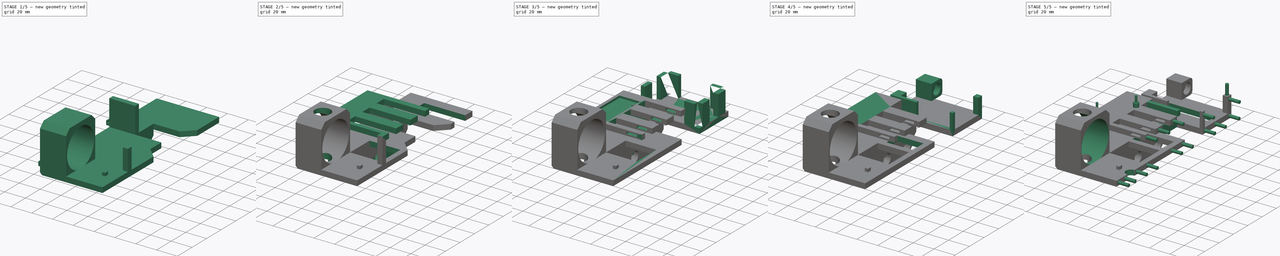
[diagram: build sequence overview — one tinted view per stage of 5, left to right]
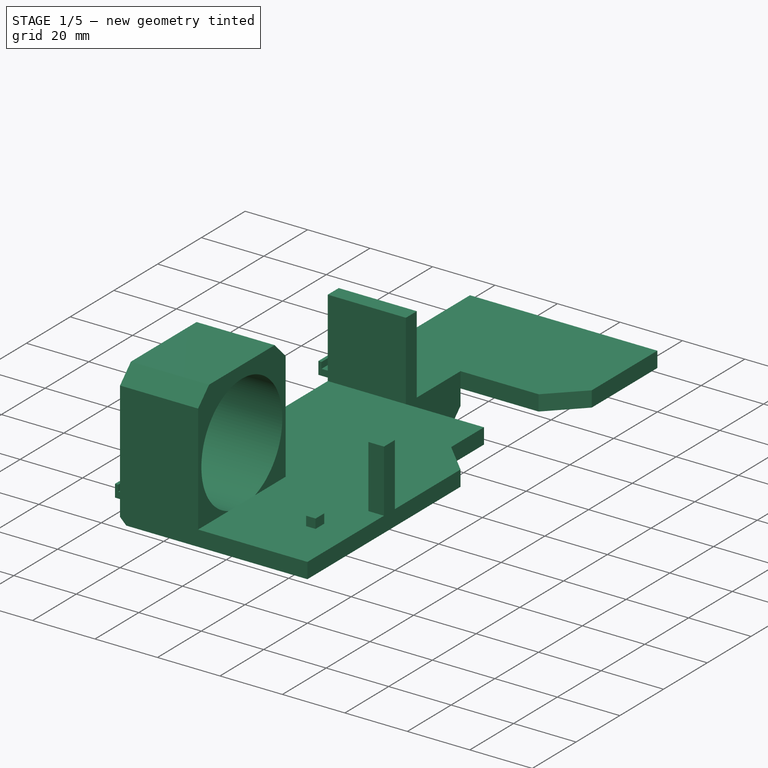
[diagram: stage 1 of 5 — iso view after this stage's code; geometry added in this stage tinted green]
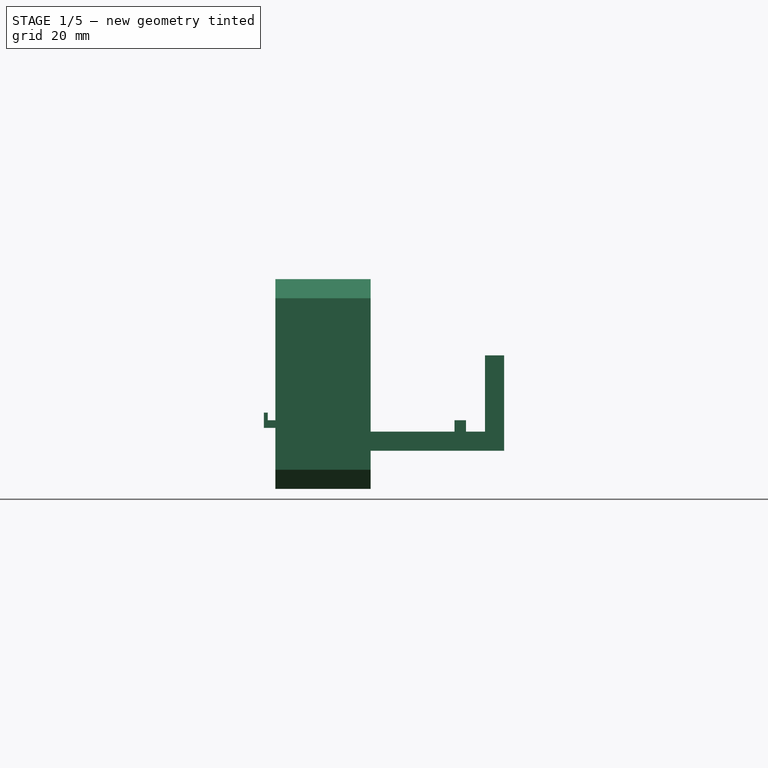
[diagram: stage 1 of 5 — front view after this stage's code; geometry added in this stage tinted green]
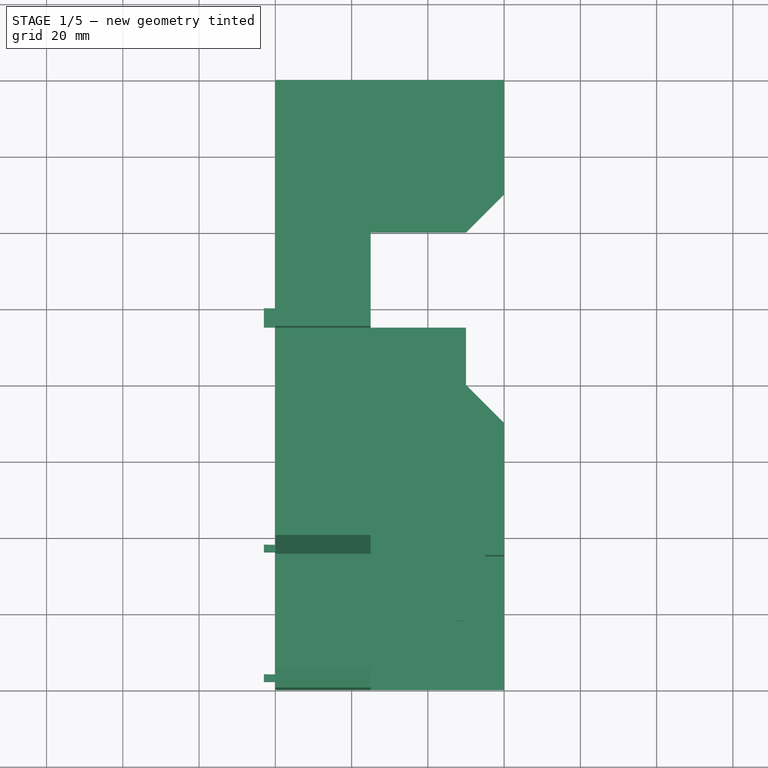
[diagram: stage 1 of 5 — top view after this stage's code; geometry added in this stage tinted green]
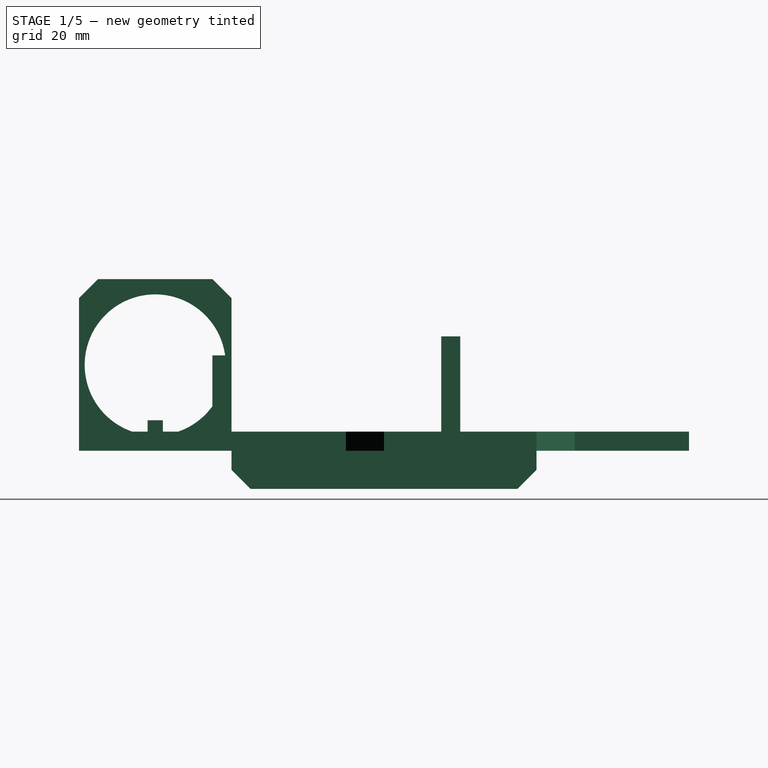
[diagram: stage 1 of 5 — right view after this stage's code; geometry added in this stage tinted green]
FCSTD DOCUMENT  (FreeCAD 1.0R39319 (Git))
Label: rahmen_rechts
License: All rights reserved
LicenseURL: https://en.wikipedia.org/wiki/All_rights_reserved
objects: Sketcher::SketchObject×60, PartDesign::Pad×54, PartDesign::Pocket×40, PartDesign::Chamfer×13, PartDesign::Fillet×3, PartDesign::Body×1
note: 451 computed .brp shape members not serialized (recipe doc carries the construction recipe); baked Part::Feature solids carry a one-line shape summary decoded from their .brp

FEATURE [Sketcher::SketchObject] Sketch
  ArcFitTolerance = 1e-06
  AttachmentSupport = -> [XY_Plane]
  FullyConstrained = true
  MakeInternals = false
  MapMode = 5
  sketch-geometry (8):
    g0: LineSegment StartX=0 StartY=0 StartZ=0 EndX=0 EndY=140 EndZ=0
    g1: LineSegment StartX=0 StartY=140 StartZ=0 EndX=-60 EndY=140 EndZ=0
    g2: LineSegment StartX=-60 StartY=0 StartZ=0 EndX=0 EndY=0 EndZ=0
    g3: LineSegment StartX=-60 StartY=140 StartZ=0 EndX=-60 EndY=120 EndZ=0
    g4: LineSegment StartX=-60 StartY=120 StartZ=0 EndX=-40 EndY=120 EndZ=0
    g5: LineSegment StartX=-40 StartY=120 StartZ=0 EndX=-40 EndY=40 EndZ=0
    g6: LineSegment StartX=-40 StartY=40 StartZ=0 EndX=-60 EndY=40 EndZ=0
    g7: LineSegment StartX=-60 StartY=40 StartZ=0 EndX=-60 EndY=0 EndZ=0
  constraints (23):
    c: Coincident(g0,g1)
    c: Coincident(g2,g0)
    c: Vertical(g0)
    c: Horizontal(g1)
    c: Horizontal(g2)
    c: Distance(g0,g2) = 60
    c: Distance(g1,g2) = 140
    c: Coincident(g0,g-1)
    c: Coincident(g1,g3)
    c: Vertical(g3)
    c: Coincident(g3,g4)
    c: Horizontal(g4)
    c: Coincident(g4,g5)
    c: Vertical(g5)
    c: Coincident(g5,g6)
    c: Horizontal(g6)
    c: Coincident(g6,g7)
    c: Coincident(g7,g2)
    c: Vertical(g7)
    c: Distance(g4,g4) = 20
    c: Distance(g6,g6) = 20
    c: DistanceY(g5,g5) = 80
    c: Distance(g7,g7) = 40
FEATURE [PartDesign::Pad] Pad  label="grundplatte"
  Direction = (0,0,1)
  Length = 5
  Length2 = 10
  Profile = -> Sketch
  ReferenceAxis = -> Sketch [N_Axis]
  Refine = true
  Suppressed = false
  Type = 0
FEATURE [Sketcher::SketchObject] Sketch001
  ArcFitTolerance = 1e-06
  AttachmentSupport = -> [Pad]
  ExternalGeometry = -> [Pad]
  FullyConstrained = true
  MakeInternals = false
  MapMode = 5
  Placement = pos=(0,0,5) rot=(0,0,1;0rad)
  sketch-geometry (4):
    g0: LineSegment StartX=-35 StartY=120 StartZ=0 EndX=-35 EndY=40 EndZ=0
    g1: LineSegment StartX=-35 StartY=40 StartZ=0 EndX=0 EndY=40 EndZ=0
    g2: LineSegment StartX=0 StartY=40 StartZ=0 EndX=0 EndY=120 EndZ=0
    g3: LineSegment StartX=0 StartY=120 StartZ=0 EndX=-35 EndY=120 EndZ=0
  constraints (12):
    c: Coincident(g0,g1)
    c: Coincident(g1,g2)
    c: Coincident(g2,g3)
    c: Coincident(g3,g0)
    c: Vertical(g0)
    c: Vertical(g2)
    c: Horizontal(g1)
    c: Horizontal(g3)
    c: PointOnObject(g1,g-2)
    c: Distance(g0,g-3) = 5
    c: Distance(g0,g-4) = 20
    c: Distance(g0,g-1) = 40
FEATURE [PartDesign::Pocket] Pocket  label="loch_mitte"
  BaseFeature = -> Pad
  Direction = (0,0,-1)
  Length = 5
  Length2 = 5
  Profile = -> Sketch001
  ReferenceAxis = -> Sketch001 [N_Axis]
  Refine = true
  Suppressed = false
  Type = 1
FEATURE [Sketcher::SketchObject] Sketch002
  ArcFitTolerance = 1e-06
  AttachmentSupport = -> [Pocket]
  ExternalGeometry = -> [Pocket]
  FullyConstrained = true
  MakeInternals = false
  MapMode = 5
  Placement = pos=(0,0,0) rot=(1,0,0;3.14159rad)
  sketch-geometry (4):
    g0: LineSegment StartX=-40 StartY=-40 StartZ=0 EndX=-40 EndY=-120 EndZ=0
    g1: LineSegment StartX=-40 StartY=-120 StartZ=0 EndX=-35 EndY=-120 EndZ=0
    g2: LineSegment StartX=-35 StartY=-120 StartZ=0 EndX=-35 EndY=-40 EndZ=0
    g3: LineSegment StartX=-35 StartY=-40 StartZ=0 EndX=-40 EndY=-40 EndZ=0
  constraints (10):
    c: Coincident(g0,g1)
    c: Coincident(g1,g2)
    c: Coincident(g2,g3)
    c: Coincident(g3,g0)
    c: Vertical(g0)
    c: Vertical(g2)
    c: Horizontal(g1)
    c: Horizontal(g3)
    c: Coincident(g0,g-4)
    c: Coincident(g1,g-3)
FEATURE [PartDesign::Pad] Pad001  label="erhöhung_unten"
  BaseFeature = -> Pocket
  Direction = (0,0,-1)
  Length = 10
  Length2 = 10
  Profile = -> Sketch002
  ReferenceAxis = -> Sketch002 [N_Axis]
  Refine = true
  Suppressed = false
  Type = 0
FEATURE [PartDesign::Chamfer] Chamfer
  Angle = 45
  Base = -> Pad001 [Edge40]
  BaseFeature = -> Pad001
  ChamferType = 0
  FlipDirection = false
  Refine = true
  Size = 5
  Size2 = 1
  SupportTransform = false
  Suppressed = false
  UseAllEdges = false
FEATURE [PartDesign::Chamfer] Chamfer001
  Angle = 45
  Base = -> Chamfer [Edge3]
  BaseFeature = -> Chamfer
  ChamferType = 0
  FlipDirection = false
  Refine = true
  Size = 5
  Size2 = 1
  SupportTransform = false
  Suppressed = false
  UseAllEdges = false
FEATURE [Sketcher::SketchObject] Sketch003
  ArcFitTolerance = 1e-06
  AttachmentSupport = -> [Chamfer001]
  ExternalGeometry = -> [Chamfer001]
  FullyConstrained = true
  MakeInternals = false
  MapMode = 5
  Placement = pos=(0,0,5) rot=(0,0,1;0rad)
  sketch-geometry (4):
    g0: LineSegment StartX=-60 StartY=40 StartZ=0 EndX=-60 EndY=0 EndZ=0
    g1: LineSegment StartX=-60 StartY=0 StartZ=0 EndX=-35 EndY=0 EndZ=0
    g2: LineSegment StartX=-35 StartY=0 StartZ=0 EndX=-35 EndY=40 EndZ=0
    g3: LineSegment StartX=-35 StartY=40 StartZ=0 EndX=-60 EndY=40 EndZ=0
  constraints (11):
    c: Coincident(g0,g1)
    c: Coincident(g1,g2)
    c: Coincident(g2,g3)
    c: Coincident(g3,g0)
    c: Vertical(g0)
    c: Vertical(g2)
    c: Horizontal(g1)
    c: Horizontal(g3)
    c: Distance(g0,g2) = 25
    c: Coincident(g0,g-4)
    c: PointOnObject(g1,g-1)
FEATURE [PartDesign::Pad] Pad002  label="radhaus"
  BaseFeature = -> Chamfer001
  Direction = (0,0,1)
  Length = 40
  Length2 = 10
  Profile = -> Sketch003
  ReferenceAxis = -> Sketch003 [N_Axis]
  Refine = true
  Suppressed = false
  Type = 0
FEATURE [Sketcher::SketchObject] Sketch004
  ArcFitTolerance = 1e-06
  AttachmentSupport = -> [Pad002]
  ExternalGeometry = -> [Pad002]
  FullyConstrained = true
  MakeInternals = false
  MapMode = 5
  Placement = pos=(-60,0,0) rot=(0.57735,-0.57735,-0.57735;2.0944rad)
  sketch-geometry (4):
    g0: LineSegment [constr] StartX=-40 StartY=45 StartZ=0 EndX=0 EndY=0 EndZ=0
    g1: LineSegment [constr] StartX=0 StartY=45 StartZ=0 EndX=-40 EndY=0 EndZ=0
    g2: GeomPoint [constr] X=-20 Y=22.5 Z=0
    g3: Circle CenterX=-20 CenterY=22.5 CenterZ=0 NormalX=0 NormalY=0 NormalZ=1 AngleXU=0 Radius=18.65
  constraints (7):
    c: Coincident(g0,g-4)
    c: Coincident(g0,g-1)
    c: Coincident(g1,g-3)
    c: Coincident(g1,g-4)
    c: Symmetric(g1,g1,g2)
    c: Diameter(g3) = 37.3
    c: Coincident(g3,g2)
FEATURE [PartDesign::Pocket] Pocket001  label="loch_motor"
  BaseFeature = -> Pad002
  Direction = (1,0,0)
  Length = 25
  Length2 = 5
  Profile = -> Sketch004
  ReferenceAxis = -> Sketch004 [N_Axis]
  Refine = true
  Suppressed = false
  Type = 0
FEATURE [PartDesign::Chamfer] Chamfer002
  Angle = 45
  Base = -> Pocket001 [Edge25]
  BaseFeature = -> Pocket001
  ChamferType = 0
  FlipDirection = false
  Refine = true
  Size = 5
  Size2 = 1
  SupportTransform = false
  Suppressed = false
  UseAllEdges = false
FEATURE [PartDesign::Chamfer] Chamfer003
  Angle = 45
  Base = -> Chamfer002 [Edge8]
  BaseFeature = -> Chamfer002
  ChamferType = 0
  FlipDirection = false
  Refine = true
  Size = 2
  Size2 = 1
  SupportTransform = false
  Suppressed = false
  UseAllEdges = false
FEATURE [PartDesign::Chamfer] Chamfer004
  Angle = 45
  Base = -> Chamfer003 [Edge40]
  BaseFeature = -> Chamfer003
  ChamferType = 0
  FlipDirection = false
  Refine = true
  Size = 5
  Size2 = 1
  SupportTransform = false
  Suppressed = false
  UseAllEdges = false
FEATURE [PartDesign::Pad] Pad003
  BaseFeature = -> Chamfer004
  Direction = (-1,0,0)
  Length = 5
  Length2 = 10
  Profile = -> Chamfer004 [Face13]
  Refine = true
  Suppressed = false
  Type = 0
FEATURE [PartDesign::Pad] Pad004
  BaseFeature = -> Pad003
  Direction = (0,1,0)
  Length = 20
  Length2 = 10
  Profile = -> Pad003 [Face15]
  Refine = true
  Suppressed = false
  Type = 0
FEATURE [PartDesign::Pad] Pad005
  BaseFeature = -> Pad004
  Direction = (0,1,0)
  Length = 20
  Length2 = 10
  Profile = -> Pad004 [Face23]
  Refine = true
  Suppressed = false
  Type = 0
FEATURE [PartDesign::Chamfer] Chamfer005
  Angle = 45
  Base = -> Pad005 [Edge70]
  BaseFeature = -> Pad005
  ChamferType = 0
  FlipDirection = false
  Refine = true
  Size = 10
  Size2 = 1
  SupportTransform = false
  Suppressed = false
  UseAllEdges = false
FEATURE [PartDesign::Pad] Pad006
  BaseFeature = -> Chamfer005
  Direction = (0,1,0)
  Length = 20
  Length2 = 10
  Profile = -> Pad004 [Face21]
  Refine = true
  Suppressed = false
  Type = 0
FEATURE [PartDesign::Chamfer] Chamfer006
  Angle = 45
  Base = -> Pad006 [Edge58]
  BaseFeature = -> Pad006
  ChamferType = 0
  FlipDirection = false
  Refine = true
  Size = 5
  Size2 = 1
  SupportTransform = false
  Suppressed = false
  UseAllEdges = false
FEATURE [Sketcher::SketchObject] Sketch007
  ArcFitTolerance = 1e-06
  FullyConstrained = true
  MakeInternals = false
  MapMode = 5
  Placement = pos=(0,0,5) rot=(0,0,1;0rad)
  sketch-geometry (10):
    g0: LineSegment [constr] StartX=-35 StartY=35 StartZ=0 EndX=-35 EndY=5 EndZ=0
    g1: LineSegment [constr] StartX=-35 StartY=5 StartZ=0 EndX=0 EndY=5 EndZ=0
    g2: LineSegment [constr] StartX=0 StartY=5 StartZ=0 EndX=0 EndY=35 EndZ=0
    g3: LineSegment [constr] StartX=0 StartY=35 StartZ=0 EndX=-35 EndY=35 EndZ=0
    g4: LineSegment [constr] StartX=-10 StartY=35 StartZ=0 EndX=-10 EndY=5 EndZ=0
    g5: GeomPoint X=-10 Y=20 Z=0
    g6: LineSegment StartX=-10 StartY=22 StartZ=0 EndX=-13 EndY=22 EndZ=0
    g7: LineSegment StartX=-13 StartY=22 StartZ=0 EndX=-13 EndY=18 EndZ=0
    g8: LineSegment StartX=-13 StartY=18 StartZ=0 EndX=-10 EndY=18 EndZ=0
    g9: LineSegment StartX=-10 StartY=18 StartZ=0 EndX=-10 EndY=22 EndZ=0
  constraints (28):
    c: Coincident(g0,g1)
    c: Coincident(g1,g2)
    c: Coincident(g2,g3)
    c: Coincident(g3,g0)
    c: Vertical(g0)
    c: Vertical(g2)
    c: Horizontal(g1)
    c: Horizontal(g3)
    c: Distance(g1,g3) = 30
    c: Coincident(g0,g-3)
    c: PointOnObject(g1,g-2)
    c: PointOnObject(g4,g3)
    c: PointOnObject(g4,g1)
    c: Vertical(g4)
    c: DistanceX(g4,g-1) = 10
    c: Symmetric(g4,g4,g5)
    c: Coincident(g6,g7)
    c: Coincident(g7,g8)
    c: Coincident(g8,g9)
    c: Coincident(g9,g6)
    c: Horizontal(g6)
    c: Horizontal(g8)
    c: Vertical(g7)
    c: Vertical(g9)
    c: Distance(g7,g9) = 3
    c: Distance(g6,g8) = 4
    c: Distance(g6,g2) = 10
    c: Distance(g5,g8) = 2
FEATURE [PartDesign::Pad] Pad009
  BaseFeature = -> Chamfer006
  Direction = (0,0,1)
  Length = 3
  Length2 = 10
  Profile = -> Sketch007
  ReferenceAxis = -> Sketch007 [N_Axis]
  Refine = true
  Suppressed = false
  Type = 0
FEATURE [PartDesign::Pad] Pad011
  BaseFeature = -> Pad009
  Direction = (1,1,1)
  Length = 15
  Length2 = 10
  Refine = true
  Suppressed = false
  Type = 0
FEATURE [Sketcher::SketchObject] Sketch008
  ArcFitTolerance = 1e-06
  AttachmentSupport = -> [Pad011]
  ExternalGeometry = -> [Pad011]
  FullyConstrained = true
  MakeInternals = false
  MapMode = 5
  Placement = pos=(0,0,5) rot=(0,0,1;0rad)
  sketch-geometry (16):
    g0: LineSegment StartX=-35 StartY=95 StartZ=0 EndX=-35 EndY=100 EndZ=0
    g1: LineSegment StartX=-35 StartY=100 StartZ=0 EndX=-60 EndY=100 EndZ=0
    g2: LineSegment StartX=-60 StartY=100 StartZ=0 EndX=-60 EndY=95 EndZ=0
    g3: LineSegment StartX=-60 StartY=95 StartZ=0 EndX=-35 EndY=95 EndZ=0
    g4: LineSegment [constr] StartX=-35 StartY=40 StartZ=0 EndX=-35 EndY=35 EndZ=0
    g5: LineSegment [constr] StartX=-35 StartY=35 StartZ=0 EndX=0 EndY=35 EndZ=0
    g6: LineSegment [constr] StartX=0 StartY=35 StartZ=0 EndX=0 EndY=40 EndZ=0
    g7: LineSegment [constr] StartX=0 StartY=40 StartZ=0 EndX=-35 EndY=40 EndZ=0
    g8: LineSegment StartX=0 StartY=40 StartZ=0 EndX=-5 EndY=40 EndZ=0
    g9: LineSegment StartX=-5 StartY=40 StartZ=0 EndX=-5 EndY=35 EndZ=0
    g10: LineSegment StartX=-5 StartY=35 StartZ=0 EndX=0 EndY=35 EndZ=0
    g11: LineSegment StartX=0 StartY=35 StartZ=0 EndX=0 EndY=40 EndZ=0
    g12: LineSegment StartX=-10 StartY=95 StartZ=0 EndX=-15 EndY=95 EndZ=0
    g13: LineSegment StartX=-15 StartY=95 StartZ=0 EndX=-15 EndY=90 EndZ=0
    g14: LineSegment StartX=-15 StartY=90 StartZ=0 EndX=-10 EndY=90 EndZ=0
    g15: LineSegment StartX=-10 StartY=90 StartZ=0 EndX=-10 EndY=95 EndZ=0
  constraints (43):
    c: Coincident(g0,g1)
    c: Coincident(g1,g2)
    c: Coincident(g2,g3)
    c: Coincident(g3,g0)
    c: Vertical(g0)
    c: Vertical(g2)
    c: Horizontal(g1)
    c: Horizontal(g3)
    c: Coincident(g0,g-6)
    c: Symmetric(g-5,g-5,g1)
    c: Coincident(g4,g5)
    c: Coincident(g5,g6)
    c: Coincident(g6,g7)
    c: Coincident(g7,g4)
    c: Vertical(g4)
    c: Vertical(g6)
    c: Horizontal(g5)
    c: Horizontal(g7)
    c: Distance(g5,g7) = 5
    c: Coincident(g4,g-9)
    c: PointOnObject(g5,g-2)
    c: Coincident(g8,g9)
    c: Coincident(g9,g10)
    c: Coincident(g10,g11)
    c: Coincident(g11,g8)
    c: Horizontal(g8)
    c: Horizontal(g10)
    c: Vertical(g9)
    c: Vertical(g11)
    c: Distance(g9,g11) = 5
    c: Coincident(g8,g6)
    c: PointOnObject(g9,g5)
    c: Coincident(g12,g13)
    c: Coincident(g13,g14)
    c: Coincident(g14,g15)
    c: Coincident(g15,g12)
    c: Horizontal(g12)
    c: Horizontal(g14)
    c: Vertical(g13)
    c: Vertical(g15)
    c: Distance(g13,g15) = 5
    c: Distance(g12,g14) = 5
    c: Coincident(g12,g-6)
FEATURE [PartDesign::Pad] Pad012
  BaseFeature = -> Pad011
  Direction = (1,1,1)
  Length = 20
  Length2 = 10
  Profile = -> Sketch008
  ReferenceAxis = -> Sketch008 [N_Axis]
  Refine = true
  Suppressed = false
  Type = 0
FEATURE [Sketcher::SketchObject] Sketch009
  ArcFitTolerance = 1e-06
  AttachmentSupport = -> [Pad012]
  ExternalGeometry = -> [Pad012]
  FullyConstrained = true
  MakeInternals = false
  MapMode = 5
  Placement = pos=(-60,0,0) rot=(0.57735,-0.57735,-0.57735;2.0944rad)
  sketch-geometry (5):
    g0: LineSegment [constr] StartX=-38 StartY=6 StartZ=0 EndX=-100 EndY=6 EndZ=0
    g1: LineSegment StartX=-100 StartY=6 StartZ=0 EndX=-95 EndY=6 EndZ=0
    g2: LineSegment StartX=-95 StartY=6 StartZ=0 EndX=-95 EndY=8 EndZ=0
    g3: LineSegment StartX=-95 StartY=8 StartZ=0 EndX=-100 EndY=8 EndZ=0
    g4: LineSegment StartX=-100 StartY=8 StartZ=0 EndX=-100 EndY=6 EndZ=0
  constraints (14):
    c: Coincident(g0,g-4)
    c: PointOnObject(g0,g-6)
    c: Horizontal(g0)
    c: Coincident(g1,g2)
    c: Coincident(g2,g3)
    c: Coincident(g3,g4)
    c: Coincident(g4,g1)
    c: Horizontal(g1)
    c: Horizontal(g3)
    c: Vertical(g2)
    c: Vertical(g4)
    c: Distance(g1,g3) = 2
    c: Coincident(g1,g0)
    c: PointOnObject(g2,g-5)
FEATURE [PartDesign::Pad] Pad013
  BaseFeature = -> Pad012
  Direction = (1,1,1)
  Length = 3
  Length2 = 10
  Profile = -> Sketch009
  ReferenceAxis = -> Sketch009 [N_Axis]
  Refine = true
  Suppressed = false
  Type = 0
FEATURE [Sketcher::SketchObject] Sketch010
  ArcFitTolerance = 1e-06
  AttachmentSupport = -> [Pad013]
  ExternalGeometry = -> [Pad013]
  FullyConstrained = true
  MakeInternals = false
  MapMode = 5
  Placement = pos=(0,0,8) rot=(0,0,1;0rad)
  sketch-geometry (4):
    g0: LineSegment StartX=-63 StartY=100 StartZ=0 EndX=-63 EndY=95 EndZ=0
    g1: LineSegment StartX=-63 StartY=95 StartZ=0 EndX=-62 EndY=95 EndZ=0
    g2: LineSegment StartX=-62 StartY=95 StartZ=0 EndX=-62 EndY=100 EndZ=0
    g3: LineSegment StartX=-62 StartY=100 StartZ=0 EndX=-63 EndY=100 EndZ=0
  constraints (11):
    c: Coincident(g0,g1)
    c: Coincident(g1,g2)
    c: Coincident(g2,g3)
    c: Coincident(g3,g0)
    c: Vertical(g0)
    c: Vertical(g2)
    c: Horizontal(g1)
    c: Horizontal(g3)
    c: Distance(g0,g2) = 1
    c: Coincident(g0,g-4)
    c: PointOnObject(g1,g-5)
FEATURE [PartDesign::Pad] Pad014
  BaseFeature = -> Pad013
  Direction = (0,0,1)
  Length = 2
  Length2 = 10
  Profile = -> Sketch010
  ReferenceAxis = -> Sketch010 [N_Axis]
  Refine = true
  Suppressed = false
  Type = 0
FEATURE [PartDesign::Pad] Pad015
  BaseFeature = -> Pad014
  Direction = (1,1,1)
  Length = 5
  Length2 = 10
  Profile = -> Pad014 [Face15]
  Refine = true
  Suppressed = false
  Type = 0
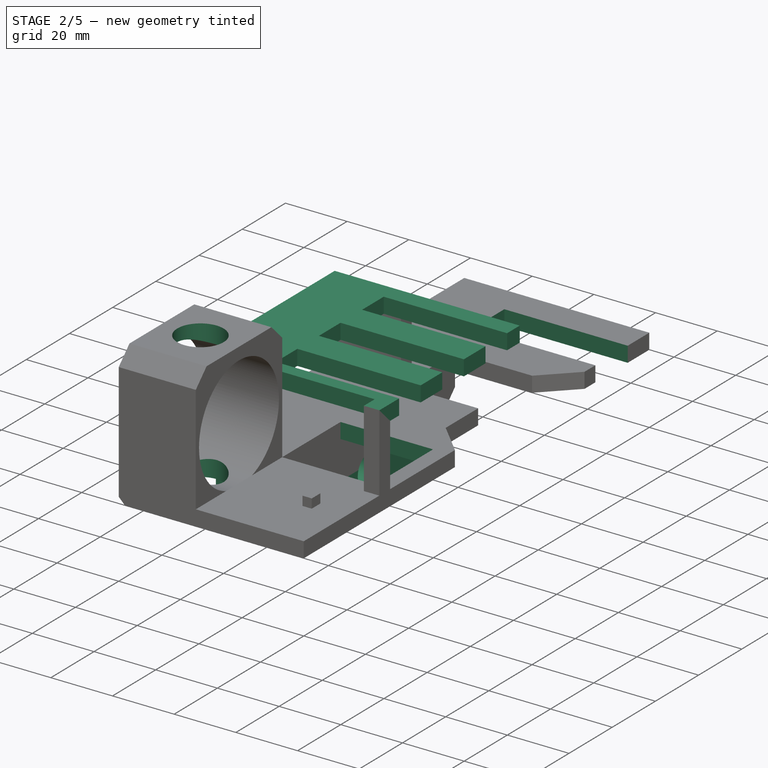
[diagram: stage 2 of 5 — iso view after this stage's code; geometry added in this stage tinted green]
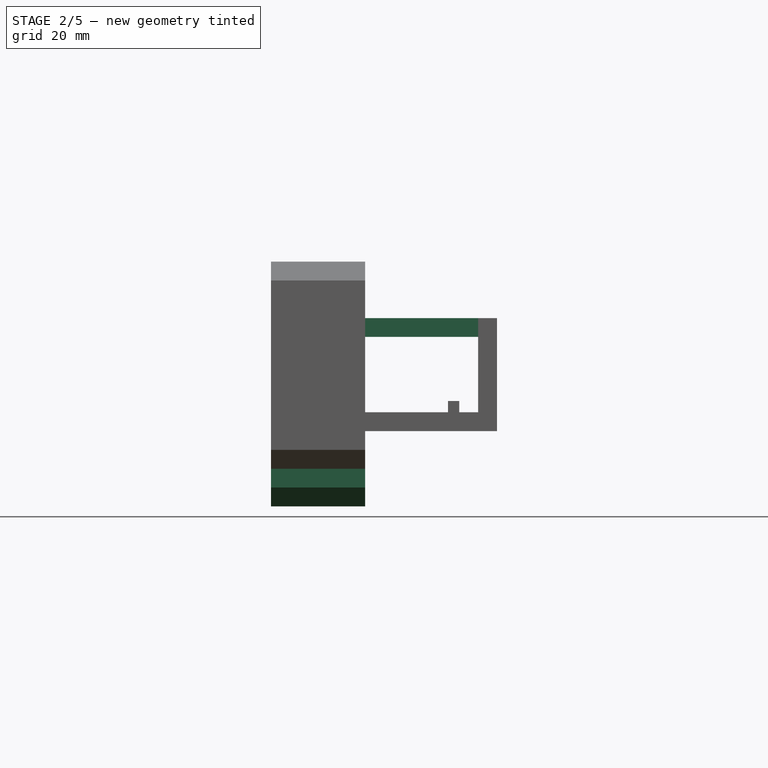
[diagram: stage 2 of 5 — front view after this stage's code; geometry added in this stage tinted green]
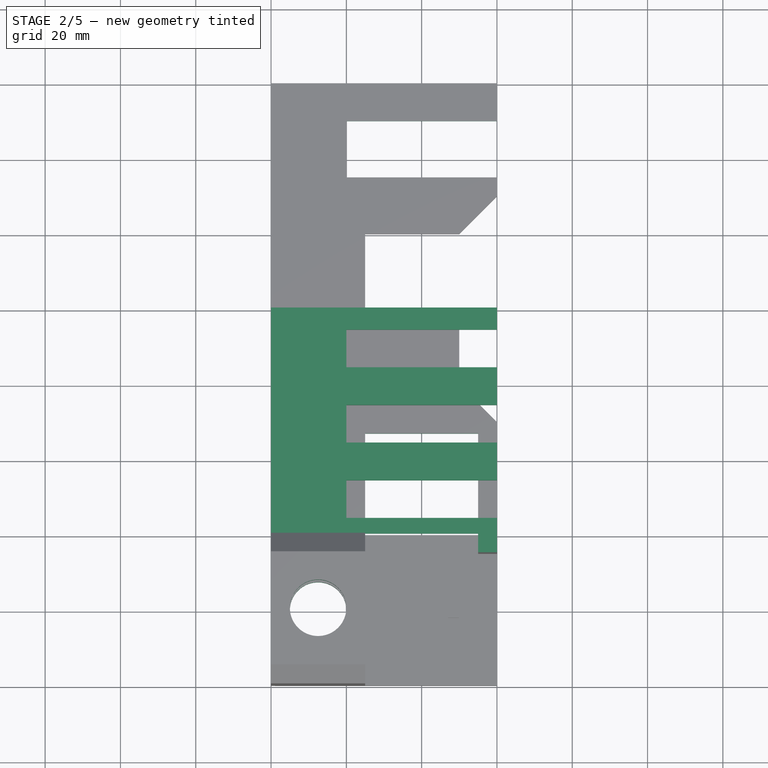
[diagram: stage 2 of 5 — top view after this stage's code; geometry added in this stage tinted green]
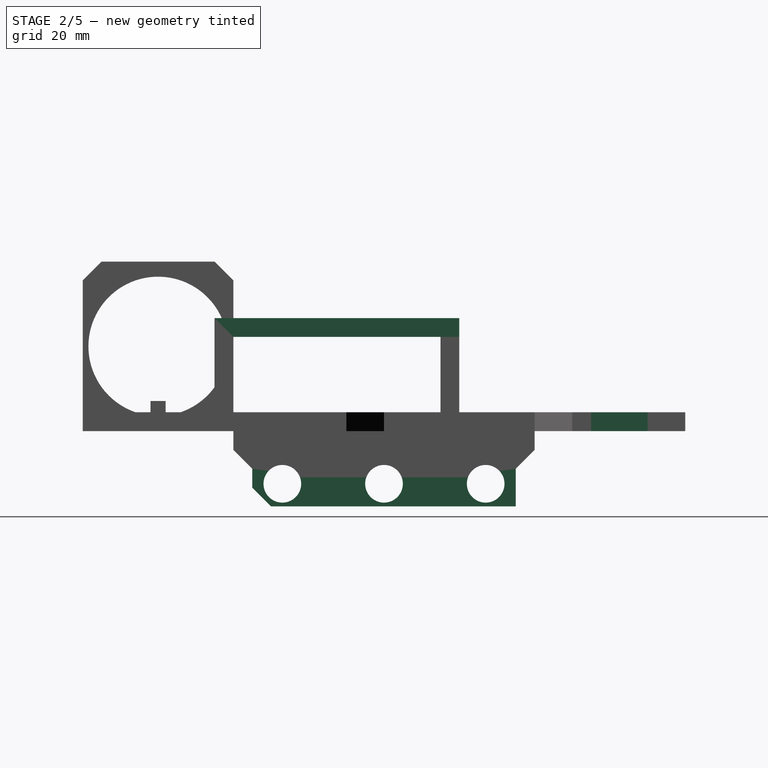
[diagram: stage 2 of 5 — right view after this stage's code; geometry added in this stage tinted green]
FEATURE [Sketcher::SketchObject] Sketch011
  ArcFitTolerance = 1e-06
  AttachmentSupport = -> [Pad015]
  ExternalGeometry = -> [Pad015]
  FullyConstrained = true
  MakeInternals = false
  MapMode = 5
  Placement = pos=(0,95,0) rot=(1,0,0;1.5708rad)
  sketch-geometry (4):
    g0: LineSegment StartX=-35 StartY=30 StartZ=0 EndX=-60 EndY=30 EndZ=0
    g1: LineSegment StartX=-60 StartY=30 StartZ=0 EndX=-60 EndY=25 EndZ=0
    g2: LineSegment StartX=-60 StartY=25 StartZ=0 EndX=-35 EndY=25 EndZ=0
    g3: LineSegment StartX=-35 StartY=25 StartZ=0 EndX=-35 EndY=30 EndZ=0
  constraints (11):
    c: Coincident(g0,g1)
    c: Coincident(g1,g2)
    c: Coincident(g2,g3)
    c: Coincident(g3,g0)
    c: Horizontal(g0)
    c: Horizontal(g2)
    c: Vertical(g1)
    c: Vertical(g3)
    c: Distance(g1,g3) = 25
    c: Distance(g0,g2) = 5
    c: Coincident(g0,g-5)
FEATURE [PartDesign::Pad] Pad016
  BaseFeature = -> Pad015
  Direction = (1,1,1)
  Length = 55
  Length2 = 10
  Profile = -> Sketch011
  ReferenceAxis = -> Sketch011 [N_Axis]
  Refine = true
  Suppressed = false
  Type = 0
FEATURE [Sketcher::SketchObject] Sketch012
  ArcFitTolerance = 1e-06
  AttachmentSupport = -> [Pad016]
  ExternalGeometry = -> [Pad016]
  FullyConstrained = true
  MakeInternals = false
  MapMode = 5
  Placement = pos=(0,0,0) rot=(1,0,0;3.14159rad)
  sketch-geometry (5):
    g0: LineSegment StartX=-30 StartY=-40 StartZ=0 EndX=-30 EndY=-60 EndZ=0
    g1: LineSegment StartX=-30 StartY=-60 StartZ=0 EndX=-5 EndY=-60 EndZ=0
    g2: LineSegment StartX=-5 StartY=-60 StartZ=0 EndX=-5 EndY=-40 EndZ=0
    g3: LineSegment StartX=-5 StartY=-40 StartZ=0 EndX=-30 EndY=-40 EndZ=0
    g4: LineSegment [constr] StartX=-35 StartY=-40 StartZ=0 EndX=0 EndY=-40 EndZ=0
  constraints (15):
    c: Coincident(g0,g1)
    c: Coincident(g1,g2)
    c: Coincident(g2,g3)
    c: Coincident(g3,g0)
    c: Vertical(g0)
    c: Vertical(g2)
    c: Horizontal(g1)
    c: Horizontal(g3)
    c: Distance(g0,g2) = 25
    c: Distance(g1,g3) = 20
    c: DistanceX(g-5,g0) = 5
    c: Coincident(g4,g-5)
    c: PointOnObject(g4,g-2)
    c: Horizontal(g4)
    c: Distance(g1,g4) = 20
FEATURE [PartDesign::Pocket] Pocket002
  BaseFeature = -> Pad016
  Direction = (0,0,1)
  Length = 5
  Length2 = 5
  Profile = -> Sketch012
  ReferenceAxis = -> Sketch012 [N_Axis]
  Refine = true
  Suppressed = false
  Type = 0
FEATURE [PartDesign::Pocket] Pocket003
  BaseFeature = -> Pocket002
  Direction = (0,1,0)
  Length = 7
  Length2 = 5
  Profile = -> Pocket002 [Face49]
  Refine = true
  Suppressed = false
  Type = 0
FEATURE [PartDesign::Pocket] Pocket004
  BaseFeature = -> Pocket003
  Direction = (1,1,1)
  Length = 5
  Length2 = 5
  Profile = -> Pocket003 [Face64]
  Refine = true
  Suppressed = false
  Type = 0
FEATURE [Sketcher::SketchObject] Sketch013
  ArcFitTolerance = 1e-06
  AttachmentSupport = -> [Pocket004]
  ExternalGeometry = -> [Pocket004]
  FullyConstrained = true
  MakeInternals = false
  MapMode = 5
  Placement = pos=(-35,0,0) rot=(0.57735,0.57735,0.57735;2.0944rad)
  sketch-geometry (4):
    g0: LineSegment StartX=40 StartY=30 StartZ=0 EndX=40 EndY=25 EndZ=0
    g1: LineSegment StartX=40 StartY=25 StartZ=0 EndX=100 EndY=25 EndZ=0
    g2: LineSegment StartX=100 StartY=25 StartZ=0 EndX=100 EndY=30 EndZ=0
    g3: LineSegment StartX=100 StartY=30 StartZ=0 EndX=40 EndY=30 EndZ=0
  constraints (11):
    c: Coincident(g0,g1)
    c: Coincident(g1,g2)
    c: Coincident(g2,g3)
    c: Coincident(g3,g0)
    c: Vertical(g0)
    c: Vertical(g2)
    c: Horizontal(g1)
    c: Horizontal(g3)
    c: Distance(g0,g2) = 60
    c: Distance(g1,g3) = 5
    c: Coincident(g0,g-3)
FEATURE [PartDesign::Pad] Pad017
  BaseFeature = -> Pocket004
  Direction = (1,0,0)
  Length = 35
  Length2 = 10
  Profile = -> Sketch013
  ReferenceAxis = -> Sketch013 [N_Axis]
  Refine = true
  Suppressed = false
  Type = 0
FEATURE [PartDesign::Pad] Pad018
  BaseFeature = -> Pad017
  Direction = (0,0,-1)
  Length = 15
  Length2 = 10
  Profile = -> Pad017 [Face65]
  Refine = true
  Suppressed = false
  Type = 0
FEATURE [PartDesign::Pad] Pad019
  BaseFeature = -> Pad018
  Direction = (1,1,1)
  Length = 5
  Length2 = 10
  Profile = -> Pad018 [Face66]
  Refine = true
  Suppressed = false
  Type = 0
FEATURE [Sketcher::SketchObject] Sketch014
  ArcFitTolerance = 1e-06
  AttachmentSupport = -> [Pad019]
  ExternalGeometry = -> [Pad019]
  FullyConstrained = true
  MakeInternals = false
  MapMode = 5
  Placement = pos=(0,0,30) rot=(0,0,1;0rad)
  sketch-geometry (8):
    g0: LineSegment StartX=-45 StartY=95 StartZ=0 EndX=-45 EndY=45 EndZ=0
    g1: LineSegment StartX=-45 StartY=45 StartZ=0 EndX=-35 EndY=45 EndZ=0
    g2: LineSegment StartX=-35 StartY=45 StartZ=0 EndX=-35 EndY=95 EndZ=0
    g3: LineSegment StartX=-35 StartY=95 StartZ=0 EndX=-45 EndY=95 EndZ=0
    g4: LineSegment StartX=-25 StartY=95 StartZ=0 EndX=-25 EndY=45 EndZ=0
    g5: LineSegment StartX=-25 StartY=45 StartZ=0 EndX=-15 EndY=45 EndZ=0
    g6: LineSegment StartX=-15 StartY=45 StartZ=0 EndX=-15 EndY=95 EndZ=0
    g7: LineSegment StartX=-15 StartY=95 StartZ=0 EndX=-25 EndY=95 EndZ=0
  constraints (24):
    c: Coincident(g0,g1)
    c: Coincident(g1,g2)
    c: Coincident(g2,g3)
    c: Coincident(g3,g0)
    c: Vertical(g0)
    c: Vertical(g2)
    c: Horizontal(g1)
    c: Horizontal(g3)
    c: Distance(g0,g2) = 10
    c: Distance(g1,g3) = 50
    c: Coincident(g4,g5)
    c: Coincident(g5,g6)
    c: Coincident(g6,g7)
    c: Coincident(g7,g4)
    c: Vertical(g4)
    c: Vertical(g6)
    c: Horizontal(g5)
    c: Horizontal(g7)
    c: Distance(g4,g6) = 10
    c: Distance(g5,g7) = 50
    c: Distance(g0,g-4) = 5
    c: Distance(g6,g-4) = 5
    c: Distance(g1,g4) = 10
    c: Distance(g0,g-3) = 15
FEATURE [PartDesign::Pocket] Pocket005
  BaseFeature = -> Pad019
  Direction = (1,1,1)
  Length = 5
  Length2 = 5
  Profile = -> Sketch014
  ReferenceAxis = -> Sketch014 [N_Axis]
  Refine = true
  Suppressed = false
  Type = 0
FEATURE [Sketcher::SketchObject] Sketch015
  ArcFitTolerance = 1e-06
  AttachmentSupport = -> [Pocket005]
  ExternalGeometry = -> [Pocket005]
  FullyConstrained = true
  MakeInternals = false
  MapMode = 5
  Placement = pos=(0,0,5) rot=(0,0,1;0rad)
  sketch-geometry (8):
    g0: LineSegment StartX=-55 StartY=155 StartZ=0 EndX=-55 EndY=145 EndZ=0
    g1: LineSegment StartX=-55 StartY=145 StartZ=0 EndX=-5 EndY=145 EndZ=0
    g2: LineSegment StartX=-5 StartY=145 StartZ=0 EndX=-5 EndY=155 EndZ=0
    g3: LineSegment StartX=-5 StartY=155 StartZ=0 EndX=-55 EndY=155 EndZ=0
    g4: LineSegment StartX=-55 StartY=140 StartZ=0 EndX=-55 EndY=130 EndZ=0
    g5: LineSegment StartX=-55 StartY=130 StartZ=0 EndX=-15 EndY=130 EndZ=0
    g6: LineSegment StartX=-15 StartY=130 StartZ=0 EndX=-15 EndY=140 EndZ=0
    g7: LineSegment StartX=-15 StartY=140 StartZ=0 EndX=-55 EndY=140 EndZ=0
  constraints (24):
    c: Coincident(g0,g1)
    c: Coincident(g1,g2)
    c: Coincident(g2,g3)
    c: Coincident(g3,g0)
    c: Vertical(g0)
    c: Vertical(g2)
    c: Horizontal(g1)
    c: Horizontal(g3)
    c: Distance(g0,g2) = 50
    c: Distance(g1,g3) = 10
    c: Coincident(g4,g5)
    c: Coincident(g5,g6)
    c: Coincident(g6,g7)
    c: Coincident(g7,g4)
    c: Vertical(g4)
    c: Vertical(g6)
    c: Horizontal(g5)
    c: Horizontal(g7)
    c: Distance(g4,g6) = 40
    c: Distance(g5,g7) = 10
    c: Distance(g0,g-3) = 5
    c: Distance(g0,g-4) = 5
    c: Distance(g4,g1) = 5
    c: Distance(g4,g-4) = 5
FEATURE [PartDesign::Pocket] Pocket006
  BaseFeature = -> Pocket005
  Direction = (1,1,1)
  Length = 5
  Length2 = 5
  Profile = -> Sketch015
  ReferenceAxis = -> Sketch015 [N_Axis]
  Refine = true
  Suppressed = false
  Type = 0
FEATURE [Sketcher::SketchObject] Sketch016
  ArcFitTolerance = 1e-06
  AttachmentSupport = -> [Pocket006]
  ExternalGeometry = -> [Pocket006]
  FullyConstrained = true
  MakeInternals = false
  MapMode = 5
  Placement = pos=(0,0,5) rot=(0,0,1;0rad)
  sketch-geometry (4):
    g0: LineSegment StartX=-16 StartY=30 StartZ=0 EndX=-31 EndY=30 EndZ=0
    g1: LineSegment StartX=-31 StartY=30 StartZ=0 EndX=-31 EndY=5 EndZ=0
    g2: LineSegment StartX=-31 StartY=5 StartZ=0 EndX=-16 EndY=5 EndZ=0
    g3: LineSegment StartX=-16 StartY=5 StartZ=0 EndX=-16 EndY=30 EndZ=0
  constraints (12):
    c: Coincident(g0,g1)
    c: Coincident(g1,g2)
    c: Coincident(g2,g3)
    c: Coincident(g3,g0)
    c: Horizontal(g0)
    c: Horizontal(g2)
    c: Vertical(g1)
    c: Vertical(g3)
    c: Distance(g1,g3) = 15
    c: Distance(g0,g2) = 25
    c: Distance(g2,g-1) = 5
    c: DistanceX(g0,g-3) = 3
FEATURE [PartDesign::Pocket] Pocket007
  BaseFeature = -> Pocket006
  Direction = (1,1,1)
  Length = 5
  Length2 = 5
  Profile = -> Sketch016
  ReferenceAxis = -> Sketch016 [N_Axis]
  Refine = true
  Suppressed = false
  Type = 0
FEATURE [Sketcher::SketchObject] Sketch017
  ArcFitTolerance = 1e-06
  AttachmentSupport = -> [Pocket007]
  ExternalGeometry = -> [Pocket007]
  FullyConstrained = true
  MakeInternals = false
  MapMode = 5
  Placement = pos=(0,0,45) rot=(0,0,1;0rad)
  sketch-geometry (3):
    g0: LineSegment [constr] StartX=-60 StartY=35 StartZ=0 EndX=-35 EndY=5 EndZ=0
    g1: GeomPoint [constr] X=-47.5 Y=20 Z=0
    g2: Circle CenterX=-47.5 CenterY=20 CenterZ=0 NormalX=0 NormalY=0 NormalZ=1 AngleXU=0 Radius=7.5
  constraints (5):
    c: Coincident(g0,g-5)
    c: Coincident(g0,g-6)
    c: Symmetric(g0,g0,g1)
    c: Diameter(g2) = 15
    c: Coincident(g2,g1)
FEATURE [PartDesign::Pocket] Pocket008
  BaseFeature = -> Pocket007
  Direction = (1,1,1)
  Length = 5
  Length2 = 5
  Profile = -> Sketch017
  ReferenceAxis = -> Sketch017 [N_Axis]
  Refine = true
  Suppressed = false
  Type = 1
FEATURE [Sketcher::SketchObject] Sketch018
  ArcFitTolerance = 1e-06
  AttachmentSupport = -> [Pocket008]
  ExternalGeometry = -> [Pocket008]
  FullyConstrained = true
  MakeInternals = false
  MapMode = 5
  Placement = pos=(0,0,-10) rot=(1,0,0;3.14159rad)
FEATURE [Sketcher::SketchObject] Sketch019
  ArcFitTolerance = 1e-06
  AttachmentSupport = -> [Pocket008]
  ExternalGeometry = -> [Pocket008]
  FullyConstrained = true
  MakeInternals = false
  MapMode = 5
  Placement = pos=(0,0,-10) rot=(1,0,0;3.14159rad)
  sketch-geometry (4):
    g0: LineSegment StartX=-60 StartY=-45 StartZ=0 EndX=-60 EndY=-115 EndZ=0
    g1: LineSegment StartX=-60 StartY=-115 StartZ=0 EndX=-55 EndY=-115 EndZ=0
    g2: LineSegment StartX=-55 StartY=-115 StartZ=0 EndX=-55 EndY=-45 EndZ=0
    g3: LineSegment StartX=-55 StartY=-45 StartZ=0 EndX=-60 EndY=-45 EndZ=0
  constraints (11):
    c: Coincident(g0,g1)
    c: Coincident(g1,g2)
    c: Coincident(g2,g3)
    c: Coincident(g3,g0)
    c: Vertical(g0)
    c: Vertical(g2)
    c: Horizontal(g1)
    c: Horizontal(g3)
    c: Distance(g0,g2) = 5
    c: Coincident(g0,g-4)
    c: PointOnObject(g1,g-5)
FEATURE [PartDesign::Pad] Pad020
  BaseFeature = -> Pocket008
  Direction = (1,1,1)
  Length = 10
  Length2 = 10
  Profile = -> Sketch019
  ReferenceAxis = -> Sketch019 [N_Axis]
  Refine = true
  Suppressed = false
  Type = 0
FEATURE [Sketcher::SketchObject] Sketch020
  ArcFitTolerance = 1e-06
  AttachmentSupport = -> [Pocket007]
  ExternalGeometry = -> [Pocket007]
  FullyConstrained = true
  MakeInternals = false
  MapMode = 5
  Placement = pos=(0,0,30) rot=(0,0,1;0rad)
  sketch-geometry (4):
    g0: LineSegment StartX=-60 StartY=100 StartZ=0 EndX=-95 EndY=100 EndZ=0
    g1: LineSegment StartX=-95 StartY=100 StartZ=0 EndX=-95 EndY=0 EndZ=0
    g2: LineSegment StartX=-95 StartY=0 StartZ=0 EndX=-60 EndY=0 EndZ=0
    g3: LineSegment StartX=-60 StartY=0 StartZ=0 EndX=-60 EndY=100 EndZ=0
  constraints (11):
    c: Coincident(g0,g1)
    c: Coincident(g1,g2)
    c: Coincident(g2,g3)
    c: Coincident(g3,g0)
    c: Horizontal(g0)
    c: Horizontal(g2)
    c: Vertical(g1)
    c: Vertical(g3)
    c: Coincident(g0,g-3)
    c: PointOnObject(g1,g-1)
    c: DistanceX(g2,g2) = 35
FEATURE [PartDesign::Pocket] Pocket009
  BaseFeature = -> Pad020
  Direction = (0,0,-1)
  Length = 5
  Length2 = 5
  Profile = -> Sketch020
  ReferenceAxis = -> Sketch020 [N_Axis]
  Refine = true
  Suppressed = false
  Type = 1
FEATURE [PartDesign::Pad] Pad021
  BaseFeature = -> Pocket009
  Direction = (1,0,0)
  Length = 30
  Length2 = 10
  Profile = -> Pocket009 [Face36]
  Refine = true
  Suppressed = false
  Type = 0
FEATURE [PartDesign::Pad] Pad022
  BaseFeature = -> Pad021
  Direction = (1,0,0)
  Length = 50
  Length2 = 10
  Profile = -> Pad021 [Face39]
  Refine = true
  Suppressed = false
  Type = 0
FEATURE [PartDesign::Pad] Pad023
  BaseFeature = -> Pad022
  Direction = (1,0,0)
  Length = 50
  Length2 = 10
  Profile = -> Pad022 [Face56]
  Refine = true
  Suppressed = false
  Type = 0
FEATURE [PartDesign::Pad] Pad024
  BaseFeature = -> Pad023
  Direction = (1,1,1)
  Length = 30
  Length2 = 10
  Profile = -> Pad023 [Face47]
  Refine = true
  Suppressed = false
  Type = 0
FEATURE [Sketcher::SketchObject] Sketch021
  ArcFitTolerance = 1e-06
  AttachmentSupport = -> [Pad024]
  ExternalGeometry = -> [Pad024]
  FullyConstrained = false
  MakeInternals = false
  MapMode = 5
  Placement = pos=(0,0,30) rot=(0,0,1;0rad)
  sketch-geometry (12):
    g0: LineSegment StartX=0 StartY=94.1431 StartZ=0 EndX=-40 EndY=94.1431 EndZ=0
    g1: LineSegment StartX=-40 StartY=94.1431 StartZ=0 EndX=-40 EndY=84.1431 EndZ=0
    g2: LineSegment StartX=-40 StartY=84.1431 StartZ=0 EndX=0 EndY=84.1431 EndZ=0
    g3: LineSegment StartX=0 StartY=84.1431 StartZ=0 EndX=0 EndY=94.1431 EndZ=0
    g4: LineSegment StartX=0 StartY=74.1431 StartZ=0 EndX=-40 EndY=74.1431 EndZ=0
    g5: LineSegment StartX=-40 StartY=74.1431 StartZ=0 EndX=-40 EndY=64.1431 EndZ=0
    g6: LineSegment StartX=-40 StartY=64.1431 StartZ=0 EndX=0 EndY=64.1431 EndZ=0
    g7: LineSegment StartX=0 StartY=64.1431 StartZ=0 EndX=0 EndY=74.1431 EndZ=0
    g8: LineSegment StartX=0 StartY=54.1431 StartZ=0 EndX=-40 EndY=54.1431 EndZ=0
    g9: LineSegment StartX=-40 StartY=54.1431 StartZ=0 EndX=-40 EndY=44.1431 EndZ=0
    g10: LineSegment StartX=-40 StartY=44.1431 StartZ=0 EndX=0 EndY=44.1431 EndZ=0
    g11: LineSegment StartX=0 StartY=44.1431 StartZ=0 EndX=0 EndY=54.1431 EndZ=0
  constraints (35):
    c: Coincident(g0,g1)
    c: Coincident(g1,g2)
    c: Coincident(g2,g3)
    c: Coincident(g3,g0)
    c: Horizontal(g0)
    c: Horizontal(g2)
    c: Vertical(g1)
    c: Vertical(g3)
    c: Distance(g1,g3) = 40
    c: Distance(g0,g2) = 10
    c: PointOnObject(g0,g-2)
    c: Coincident(g4,g5)
    c: Coincident(g5,g6)
    c: Coincident(g6,g7)
    c: Coincident(g7,g4)
    c: Horizontal(g4)
    c: Horizontal(g6)
    c: Vertical(g5)
    c: Vertical(g7)
    c: Distance(g5,g7) = 40
    c: Distance(g4,g6) = 10
    c: PointOnObject(g4,g-2)
    c: Coincident(g8,g9)
    c: Coincident(g9,g10)
    c: Coincident(g10,g11)
    c: Coincident(g11,g8)
    c: Horizontal(g8)
    c: Horizontal(g10)
    c: Vertical(g9)
    c: Vertical(g11)
    c: Distance(g9,g11) = 40
    c: Distance(g8,g10) = 10
    c: PointOnObject(g8,g-2)
    c: Distance(g1,g4) = 10
    c: Distance(g5,g8) = 10
FEATURE [PartDesign::Pocket] Pocket010
  BaseFeature = -> Pad024
  Direction = (1,1,1)
  Length = 5
  Length2 = 5
  Profile = -> Sketch021
  ReferenceAxis = -> Sketch021 [N_Axis]
  Refine = true
  Suppressed = false
  Type = 0
FEATURE [Sketcher::SketchObject] Sketch022
  ArcFitTolerance = 1e-06
  AttachmentSupport = -> [Pocket010]
  ExternalGeometry = -> [Pocket010]
  FullyConstrained = true
  MakeInternals = false
  MapMode = 5
  Placement = pos=(0,0,5) rot=(0,0,1;0rad)
  sketch-geometry (4):
    g0: LineSegment StartX=0 StartY=150 StartZ=0 EndX=-40 EndY=150 EndZ=0
    g1: LineSegment StartX=-40 StartY=150 StartZ=0 EndX=-40 EndY=135 EndZ=0
    g2: LineSegment StartX=-40 StartY=135 StartZ=0 EndX=0 EndY=135 EndZ=0
    g3: LineSegment StartX=0 StartY=135 StartZ=0 EndX=0 EndY=150 EndZ=0
  constraints (12):
    c: Coincident(g0,g1)
    c: Coincident(g1,g2)
    c: Coincident(g2,g3)
    c: Coincident(g3,g0)
    c: Horizontal(g0)
    c: Horizontal(g2)
    c: Vertical(g1)
    c: Vertical(g3)
    c: Distance(g1,g3) = 40
    c: Distance(g0,g2) = 15
    c: PointOnObject(g0,g-2)
    c: Distance(g0,g-3) = 10
FEATURE [PartDesign::Pocket] Pocket011
  BaseFeature = -> Pocket010
  Direction = (0,0,-1)
  Length = 5
  Length2 = 5
  Profile = -> Sketch022
  ReferenceAxis = -> Sketch022 [N_Axis]
  Refine = true
  Suppressed = false
  Type = 0
FEATURE [PartDesign::Pad] Pad025
  BaseFeature = -> Pocket011
  Direction = (1,0,0)
  Length = 20
  Length2 = 10
  Profile = -> Pocket011 [Face42]
  Refine = true
  Suppressed = false
  Type = 0
FEATURE [Sketcher::SketchObject] Sketch023
  ArcFitTolerance = 1e-06
  AttachmentSupport = -> [Pad025]
  ExternalGeometry = -> [Pad025]
  FullyConstrained = true
  MakeInternals = false
  MapMode = 5
  Placement = pos=(-60,0,0) rot=(0.57735,-0.57735,-0.57735;2.0944rad)
  sketch-geometry (5):
    g0: LineSegment [constr] StartX=-115 StartY=-14 StartZ=0 EndX=-45 EndY=-14 EndZ=0
    g1: Circle CenterX=-106.9 CenterY=-14 CenterZ=0 NormalX=0 NormalY=0 NormalZ=1 AngleXU=0 Radius=5.1
    g2: Circle CenterX=-53.1 CenterY=-14 CenterZ=0 NormalX=0 NormalY=0 NormalZ=1 AngleXU=0 Radius=5.1
    g3: GeomPoint X=-80 Y=-14 Z=0
    g4: Circle CenterX=-80 CenterY=-14 CenterZ=0 NormalX=0 NormalY=0 NormalZ=1 AngleXU=0 Radius=5.1
  constraints (13):
    c: PointOnObject(g0,g-4)
    c: PointOnObject(g0,g-5)
    c: Horizontal(g0)
    c: Distance(g0,g-4) = 6
    c: Diameter(g1) = 10.2
    c: PointOnObject(g1,g0)
    c: Diameter(g2) = 10.2
    c: PointOnObject(g2,g0)
    c: Distance(g1,g-4) = 3
    c: Distance(g2,g-5) = 3
    c: Symmetric(g0,g0,g3)
    c: Diameter(g4) = 10.2
    c: Coincident(g4,g3)
FEATURE [PartDesign::Pocket] Pocket012  label="radloch_unten"
  BaseFeature = -> Pad025
  Direction = (1,1,1)
  Length = 5
  Length2 = 5
  Profile = -> Sketch023
  ReferenceAxis = -> Sketch023 [N_Axis]
  Refine = true
  Suppressed = false
  Type = 0
FEATURE [PartDesign::Chamfer] Chamfer007
  Angle = 45
  Base = -> Pocket012 [Edge105]
  BaseFeature = -> Pocket012
  ChamferType = 0
  FlipDirection = false
  Refine = true
  Size = 5
  Size2 = 1
  SupportTransform = false
  Suppressed = false
  UseAllEdges = false
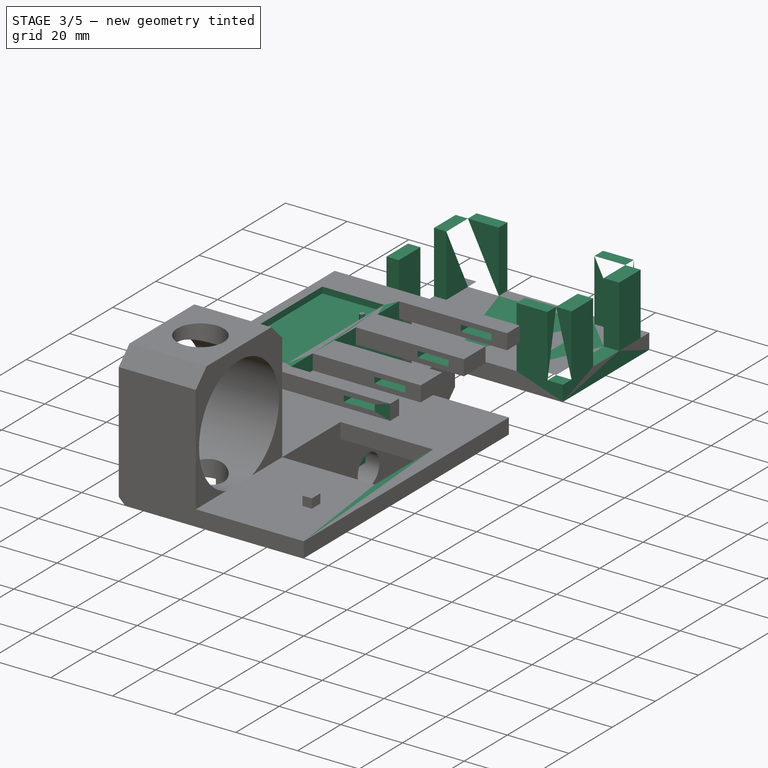
[diagram: stage 3 of 5 — iso view after this stage's code; geometry added in this stage tinted green]
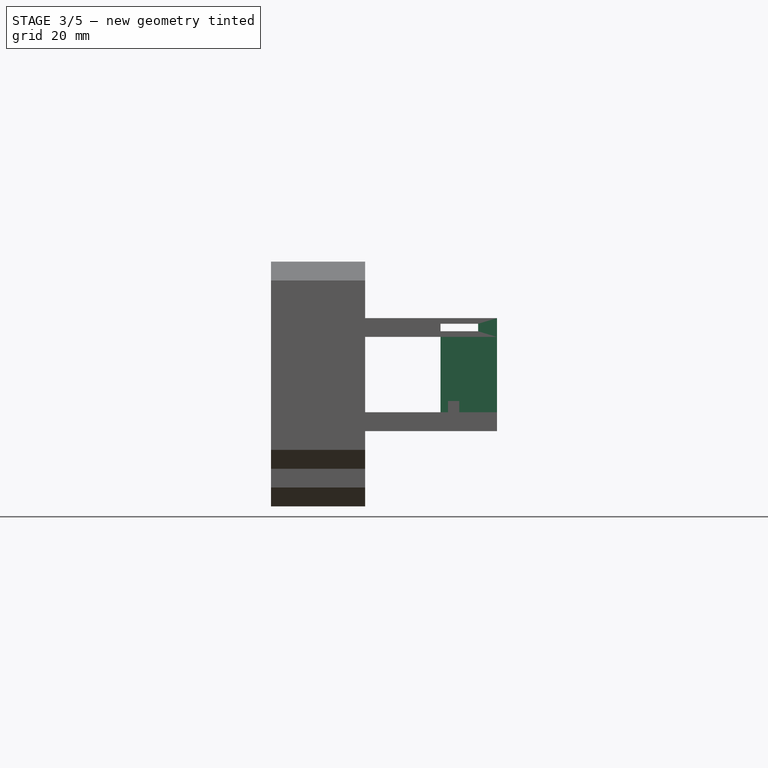
[diagram: stage 3 of 5 — front view after this stage's code; geometry added in this stage tinted green]
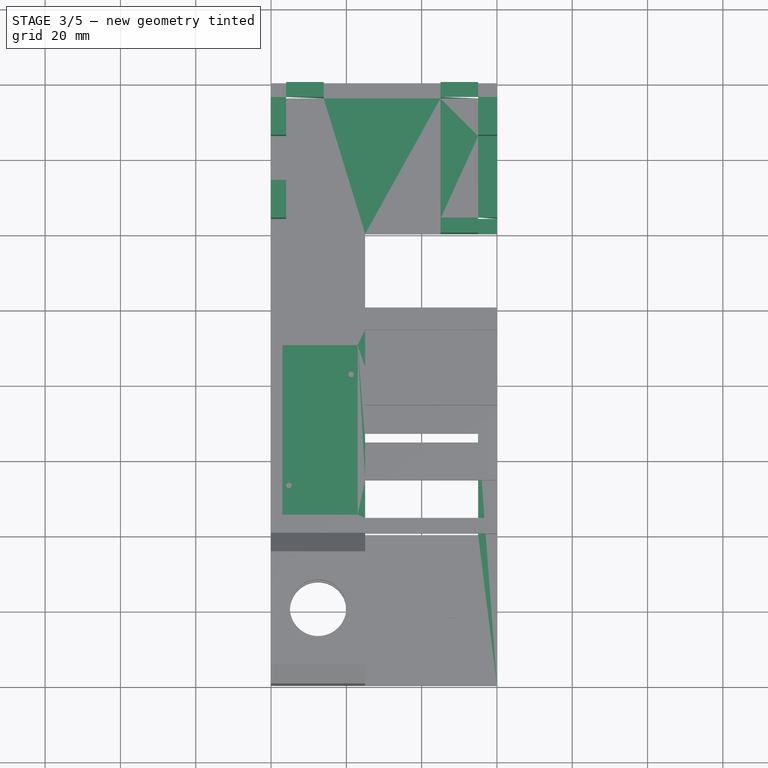
[diagram: stage 3 of 5 — top view after this stage's code; geometry added in this stage tinted green]
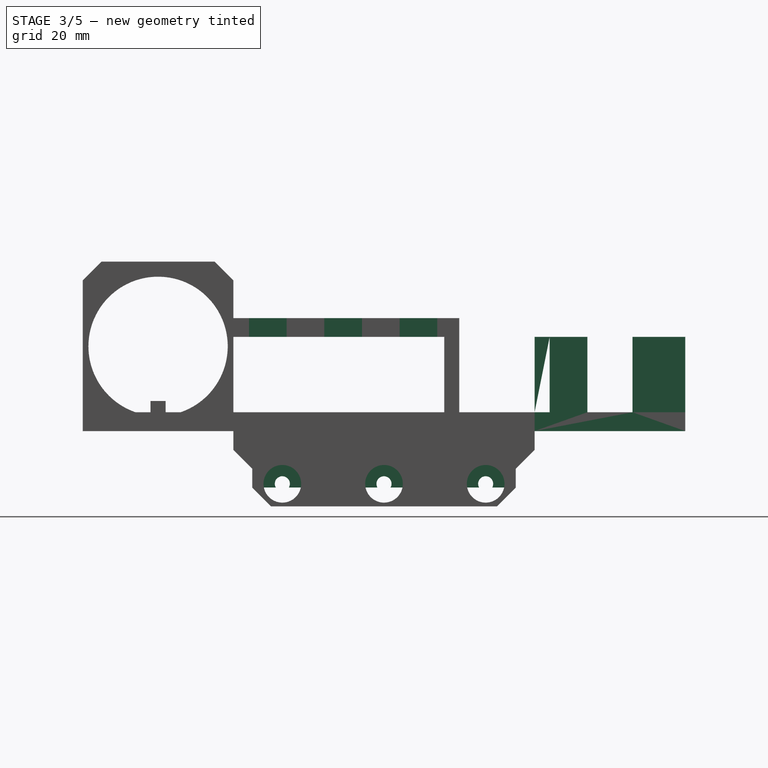
[diagram: stage 3 of 5 — right view after this stage's code; geometry added in this stage tinted green]
FEATURE [PartDesign::Chamfer] Chamfer008
  Angle = 45
  Base = -> Chamfer007 [Edge31]
  BaseFeature = -> Chamfer007
  ChamferType = 0
  FlipDirection = false
  Refine = true
  Size = 5
  Size2 = 1
  SupportTransform = false
  Suppressed = false
  UseAllEdges = false
FEATURE [Sketcher::SketchObject] Sketch024
  ArcFitTolerance = 1e-06
  FullyConstrained = true
  MakeInternals = false
  MapMode = 5
  Placement = pos=(-5,0,0) rot=(0.57735,-0.57735,-0.57735;2.0944rad)
  sketch-geometry (4):
    g0: LineSegment StartX=-67 StartY=5 StartZ=0 EndX=-67 EndY=0 EndZ=0
    g1: LineSegment StartX=-67 StartY=0 StartZ=0 EndX=-40 EndY=0 EndZ=0
    g2: LineSegment StartX=-40 StartY=0 StartZ=0 EndX=-40 EndY=5 EndZ=0
    g3: LineSegment StartX=-40 StartY=5 StartZ=0 EndX=-67 EndY=5 EndZ=0
  constraints (11):
    c: Coincident(g0,g1)
    c: Coincident(g1,g2)
    c: Coincident(g2,g3)
    c: Coincident(g3,g0)
    c: Vertical(g0)
    c: Vertical(g2)
    c: Horizontal(g1)
    c: Horizontal(g3)
    c: Distance(g0,g2) = 27
    c: Distance(g1,g3) = 5
    c: Coincident(g0,g-4)
FEATURE [PartDesign::Pad] Pad026
  BaseFeature = -> Chamfer008
  Direction = (1,0,0)
  Length = 10
  Length2 = 10
  Profile = -> Chamfer008 [Face59]
  Refine = true
  Suppressed = false
  Type = 0
FEATURE [PartDesign::Pad] Pad027
  BaseFeature = -> Pad026
  Direction = (0,-1,0)
  Length = 10
  Length2 = 10
  Profile = -> Pad026 [Face67]
  Refine = true
  Suppressed = false
  Type = 0
FEATURE [PartDesign::Pocket] Pocket013
  BaseFeature = -> Pad027
  Direction = (0,1,0)
  Length = 5
  Length2 = 5
  Profile = -> Pad027 [Face31]
  Refine = true
  Suppressed = false
  Type = 0
FEATURE [PartDesign::Pocket] Pocket014
  BaseFeature = -> Pocket013
  Direction = (0,1,0)
  Length = 1
  Length2 = 5
  Profile = -> Pocket013 [Face26]
  Refine = true
  Suppressed = false
  Type = 0
FEATURE [PartDesign::Pad] Pad028
  BaseFeature = -> Pocket014
  Direction = (1,0,0)
  Length = 5
  Length2 = 10
  Profile = -> Pocket014 [Face21]
  Refine = true
  Suppressed = false
  Type = 0
FEATURE [PartDesign::Pad] Pad029
  BaseFeature = -> Pad028
  Direction = (1,0,0)
  Length = 5
  Length2 = 10
  Profile = -> Pad028 [Face21]
  Refine = true
  Suppressed = false
  Type = 0
FEATURE [PartDesign::Pad] Pad030
  BaseFeature = -> Pad029
  Direction = (1,1,1)
  Length = 5
  Length2 = 10
  Profile = -> Pad029 [Face25]
  Refine = true
  Suppressed = false
  Type = 0
FEATURE [Sketcher::SketchObject] Sketch025
  ArcFitTolerance = 1e-06
  AttachmentSupport = -> [Pad030]
  ExternalGeometry = -> [Pad030]
  FullyConstrained = true
  MakeInternals = false
  MapMode = 5
  Placement = pos=(0,0,30) rot=(0,0,1;0rad)
  sketch-geometry (4):
    g0: LineSegment StartX=-58 StartY=90 StartZ=0 EndX=-58 EndY=46.9 EndZ=0
    g1: LineSegment StartX=-58 StartY=46.9 StartZ=0 EndX=-35.9 EndY=46.9 EndZ=0
    g2: LineSegment StartX=-35.9 StartY=46.9 StartZ=0 EndX=-35.9 EndY=90 EndZ=0
    g3: LineSegment StartX=-35.9 StartY=90 StartZ=0 EndX=-58 EndY=90 EndZ=0
  constraints (12):
    c: Coincident(g0,g1)
    c: Coincident(g1,g2)
    c: Coincident(g2,g3)
    c: Coincident(g3,g0)
    c: Vertical(g0)
    c: Vertical(g2)
    c: Horizontal(g1)
    c: Horizontal(g3)
    c: Distance(g0,g2) = 22.1
    c: Distance(g1,g3) = 43.1
    c: Distance(g0,g-3) = 2
    c: DistanceY(g0,g-4) = 10
FEATURE [PartDesign::Pocket] Pocket015
  BaseFeature = -> Pad030
  Direction = (1,1,1)
  Length = 2
  Length2 = 5
  Profile = -> Sketch025
  ReferenceAxis = -> Sketch025 [N_Axis]
  Refine = true
  Suppressed = false
  Type = 0
FEATURE [Sketcher::SketchObject] Sketch026
  ArcFitTolerance = 1e-06
  AttachmentSupport = -> [Pocket015]
  ExternalGeometry = -> [Pocket015]
  FullyConstrained = true
  MakeInternals = false
  MapMode = 5
  Placement = pos=(0,0,28) rot=(0,0,1;0rad)
  sketch-geometry (14):
    g0: LineSegment [constr] StartX=-55.25 StartY=82.75 StartZ=0 EndX=-55.25 EndY=52.25 EndZ=0
    g1: LineSegment [constr] StartX=-55.25 StartY=52.25 StartZ=0 EndX=-38.75 EndY=52.25 EndZ=0
    g2: LineSegment [constr] StartX=-38.75 StartY=52.25 StartZ=0 EndX=-38.75 EndY=82.75 EndZ=0
    g3: LineSegment [constr] StartX=-38.75 StartY=82.75 StartZ=0 EndX=-55.25 EndY=82.75 EndZ=0
    g4: GeomPoint [constr] X=-47 Y=82.75 Z=0
    g5: GeomPoint [constr] X=-38.75 Y=67.5 Z=0
    g6: GeomPoint X=-47 Y=90 Z=0
    g7: GeomPoint X=-47 Y=45 Z=0
    g8: LineSegment [constr] StartX=-47 StartY=90 StartZ=0 EndX=-47 EndY=45 EndZ=0
    g9: GeomPoint [constr] X=-37 Y=67.5 Z=0
    g10: GeomPoint [constr] X=-57 Y=67.5 Z=0
    g11: LineSegment [constr] StartX=-57 StartY=67.5 StartZ=0 EndX=-37 EndY=67.5 EndZ=0
    g12: Circle CenterX=-38.75 CenterY=82.75 CenterZ=0 NormalX=0 NormalY=0 NormalZ=1 AngleXU=0 Radius=0.75
    g13: Circle CenterX=-55.25 CenterY=52.25 CenterZ=0 NormalX=0 NormalY=0 NormalZ=1 AngleXU=0 Radius=0.75
  constraints (26):
    c: Coincident(g0,g1)
    c: Coincident(g1,g2)
    c: Coincident(g2,g3)
    c: Coincident(g3,g0)
    c: Vertical(g0)
    c: Vertical(g2)
    c: Horizontal(g1)
    c: Horizontal(g3)
    c: Distance(g0,g2) = 16.5
    c: Distance(g1,g3) = 30.5
    c: Symmetric(g3,g3,g4)
    c: Symmetric(g2,g2,g5)
    c: Symmetric(g-3,g-3,g6)
    c: Symmetric(g-5,g-5,g7)
    c: Coincident(g8,g6)
    c: Coincident(g8,g7)
    c: Symmetric(g-4,g-4,g9)
    c: Symmetric(g-6,g-6,g10)
    c: Coincident(g11,g10)
    c: Coincident(g11,g9)
    c: PointOnObject(g4,g8)
    c: PointOnObject(g5,g11)
    c: Diameter(g12) = 1.5
    c: Coincident(g12,g2)
    c: Diameter(g13) = 1.5
    c: Coincident(g13,g0)
FEATURE [PartDesign::Pad] Pad031
  BaseFeature = -> Pocket015
  Direction = (0,0,1)
  Length = 2
  Length2 = 10
  Profile = -> Sketch026
  ReferenceAxis = -> Sketch026 [N_Axis]
  Refine = true
  Suppressed = false
  Type = 0
FEATURE [PartDesign::Pad] Pad032
  BaseFeature = -> Pad031
  Direction = (1,1,1)
  Length = 5
  Length2 = 10
  Profile = -> Pad031 [Face62]
  Refine = true
  Suppressed = false
  Type = 0
FEATURE [Sketcher::SketchObject] Sketch027
  ArcFitTolerance = 1e-06
  AttachmentSupport = -> [Pad032]
  ExternalGeometry = -> [Pad032]
  FullyConstrained = true
  MakeInternals = false
  MapMode = 5
  Placement = pos=(0,45,0) rot=(1,0,0;1.5708rad)
  sketch-geometry (4):
    g0: LineSegment StartX=-55.5 StartY=-10 StartZ=0 EndX=-55.5 EndY=-15 EndZ=0
    g1: LineSegment StartX=-55.5 StartY=-15 StartZ=0 EndX=-39.5 EndY=-15 EndZ=0
    g2: LineSegment StartX=-39.5 StartY=-15 StartZ=0 EndX=-39.5 EndY=-10 EndZ=0
    g3: LineSegment StartX=-39.5 StartY=-10 StartZ=0 EndX=-55.5 EndY=-10 EndZ=0
  constraints (12):
    c: Coincident(g0,g1)
    c: Coincident(g1,g2)
    c: Coincident(g2,g3)
    c: Coincident(g3,g0)
    c: Vertical(g0)
    c: Vertical(g2)
    c: Horizontal(g1)
    c: Horizontal(g3)
    c: PointOnObject(g0,g-4)
    c: PointOnObject(g1,g-3)
    c: Distance(g0,g-5) = 4.5
    c: Distance(g1,g-6) = 4.5
FEATURE [PartDesign::Pad] Pad033
  BaseFeature = -> Pad032
  Direction = (0,-1,2e-16)
  Length = 70
  Length2 = 10
  Profile = -> Sketch027
  ReferenceAxis = -> Sketch027 [N_Axis]
  Refine = true
  Reversed = true
  Suppressed = false
  Type = 0
FEATURE [PartDesign::Pad] Pad034
  BaseFeature = -> Pad033
  Direction = (0,2e-16,1)
  Length = 2
  Length2 = 10
  Profile = -> Pad033 [Face79]
  Refine = true
  Suppressed = false
  Type = 0
FEATURE [PartDesign::Pad] Pad035
  BaseFeature = -> Pad034
  Direction = (0,2e-16,1)
  Length = 2
  Length2 = 10
  Profile = -> Pad034 [Face72]
  Refine = true
  Suppressed = false
  Type = 0
FEATURE [PartDesign::Pad] Pad036
  BaseFeature = -> Pad035
  Direction = (1,1,1)
  Length = 2
  Length2 = 10
  Profile = -> Pad035 [Face73]
  Refine = true
  Suppressed = false
  Type = 0
FEATURE [Sketcher::SketchObject] Sketch028
  ArcFitTolerance = 1e-06
  AttachmentSupport = -> [Pad036]
  ExternalGeometry = -> [Pad036]
  FullyConstrained = true
  MakeInternals = false
  MapMode = 5
  Placement = pos=(-55.5,0,0) rot=(0.57735,-0.57735,-0.57735;2.0944rad)
  sketch-geometry (1):
    g0: Circle CenterX=-80 CenterY=-14 CenterZ=0 NormalX=0 NormalY=0 NormalZ=1 AngleXU=0 Radius=2
  constraints (2):
    c: Diameter(g0) = 4
    c: Coincident(g0,g-3)
FEATURE [PartDesign::Pocket] Pocket016
  BaseFeature = -> Pad036
  Direction = (1,1,1)
  Length = 5
  Length2 = 5
  Profile = -> Sketch028
  ReferenceAxis = -> Sketch028 [N_Axis]
  Refine = true
  Suppressed = false
  Type = 1
FEATURE [Sketcher::SketchObject] Sketch029
  ArcFitTolerance = 1e-06
  AttachmentSupport = -> [Pocket016]
  ExternalGeometry = -> [Pocket016]
  FullyConstrained = true
  MakeInternals = false
  MapMode = 5
  Placement = pos=(-55.5,0,0) rot=(0.57735,-0.57735,-0.57735;2.0944rad)
  sketch-geometry (1):
    g0: Circle CenterX=-53 CenterY=-14 CenterZ=0 NormalX=0 NormalY=0 NormalZ=1 AngleXU=0 Radius=2
  constraints (2):
    c: Diameter(g0) = 4
    c: Coincident(g0,g-3)
FEATURE [PartDesign::Pocket] Pocket017
  BaseFeature = -> Pocket016
  Direction = (1,1,1)
  Length = 5
  Length2 = 5
  Profile = -> Sketch029
  ReferenceAxis = -> Sketch029 [N_Axis]
  Refine = true
  Suppressed = false
  Type = 1
FEATURE [Sketcher::SketchObject] Sketch030
  ArcFitTolerance = 1e-06
  AttachmentSupport = -> [Pocket017]
  ExternalGeometry = -> [Pocket017]
  FullyConstrained = true
  MakeInternals = false
  MapMode = 5
  Placement = pos=(-55.5,0,0) rot=(0.57735,-0.57735,-0.57735;2.0944rad)
  sketch-geometry (1):
    g0: Circle CenterX=-107 CenterY=-14 CenterZ=0 NormalX=0 NormalY=0 NormalZ=1 AngleXU=0 Radius=2
  constraints (2):
    c: Diameter(g0) = 4
    c: Coincident(g0,g-3)
FEATURE [PartDesign::Pocket] Pocket018
  BaseFeature = -> Pocket017
  Direction = (1,1,1)
  Length = 5
  Length2 = 5
  Profile = -> Sketch030
  ReferenceAxis = -> Sketch030 [N_Axis]
  Refine = true
  Suppressed = false
  Type = 1
FEATURE [Sketcher::SketchObject] Sketch031
  ArcFitTolerance = 1e-06
  AttachmentSupport = -> [Pocket018]
  ExternalGeometry = -> [Pocket018]
  FullyConstrained = true
  MakeInternals = false
  MapMode = 5
  Placement = pos=(0,135,0) rot=(0,0.707107,0.707107;3.14159rad)
  sketch-geometry (4):
    g0: LineSegment StartX=0 StartY=0 StartZ=0 EndX=15 EndY=0 EndZ=0
    g1: LineSegment StartX=15 StartY=0 StartZ=0 EndX=15 EndY=5 EndZ=0
    g2: LineSegment StartX=15 StartY=5 StartZ=0 EndX=0 EndY=5 EndZ=0
    g3: LineSegment StartX=0 StartY=5 StartZ=0 EndX=0 EndY=0 EndZ=0
  constraints (11):
    c: Coincident(g0,g1)
    c: Coincident(g1,g2)
    c: Coincident(g2,g3)
    c: Coincident(g3,g0)
    c: Horizontal(g0)
    c: Horizontal(g2)
    c: Vertical(g1)
    c: Vertical(g3)
    c: Distance(g1,g3) = 15
    c: Coincident(g0,g-1)
    c: PointOnObject(g1,g-3)
FEATURE [PartDesign::Pad] Pad037
  BaseFeature = -> Pocket018
  Direction = (0,1,-2e-16)
  Length = 15
  Length2 = 10
  Profile = -> Sketch031
  ReferenceAxis = -> Sketch031 [N_Axis]
  Refine = true
  Reversed = true
  Suppressed = false
  Type = 0
FEATURE [PartDesign::Pad] Pad038
  BaseFeature = -> Pad037
  Direction = (1,1,1)
  Length = 15
  Length2 = 10
  Profile = -> Pad037 [Face89]
  Refine = true
  Suppressed = false
  Type = 0
FEATURE [Sketcher::SketchObject] Sketch032
  ArcFitTolerance = 1e-06
  AttachmentSupport = -> [Pad038]
  ExternalGeometry = -> [Pad038]
  FullyConstrained = true
  MakeInternals = false
  MapMode = 5
  Placement = pos=(0,0,5) rot=(0,0,1;0rad)
  sketch-geometry (36):
    g0: LineSegment [constr] StartX=-56 StartY=124 StartZ=0 EndX=-5 EndY=124 EndZ=0
    g1: LineSegment [constr] StartX=-5 StartY=124 StartZ=0 EndX=-5 EndY=156 EndZ=0
    g2: LineSegment [constr] StartX=-5 StartY=156 StartZ=0 EndX=-56 EndY=156 EndZ=0
    g3: LineSegment [constr] StartX=-56 StartY=156 StartZ=0 EndX=-56 EndY=124 EndZ=0
    g4: LineSegment StartX=-56 StartY=156 StartZ=0 EndX=-46 EndY=156 EndZ=0
    g5: LineSegment StartX=-46 StartY=156 StartZ=0 EndX=-46 EndY=160 EndZ=0
    g6: LineSegment StartX=-46 StartY=160 StartZ=0 EndX=-56 EndY=160 EndZ=0
    g7: LineSegment StartX=-56 StartY=160 StartZ=0 EndX=-56 EndY=156 EndZ=0
    g8: LineSegment StartX=-5 StartY=156 StartZ=0 EndX=-5 EndY=160 EndZ=0
    g9: LineSegment StartX=-5 StartY=160 StartZ=0 EndX=-15 EndY=160 EndZ=0
    g10: LineSegment StartX=-15 StartY=160 StartZ=0 EndX=-15 EndY=156 EndZ=0
    g11: LineSegment StartX=-15 StartY=156 StartZ=0 EndX=-5 EndY=156 EndZ=0
    g12: LineSegment StartX=-5 StartY=124 StartZ=0 EndX=-15 EndY=124 EndZ=0
    g13: LineSegment StartX=-15 StartY=124 StartZ=0 EndX=-15 EndY=120 EndZ=0
    g14: LineSegment StartX=-15 StartY=120 StartZ=0 EndX=-5 EndY=120 EndZ=0
    g15: LineSegment StartX=-5 StartY=120 StartZ=0 EndX=-5 EndY=124 EndZ=0
    g16: LineSegment StartX=-5 StartY=156 StartZ=0 EndX=-5 EndY=146 EndZ=0
    g17: LineSegment StartX=-5 StartY=146 StartZ=0 EndX=0 EndY=146 EndZ=0
    g18: LineSegment StartX=0 StartY=146 StartZ=0 EndX=0 EndY=156 EndZ=0
    g19: LineSegment StartX=0 StartY=156 StartZ=0 EndX=-5 EndY=156 EndZ=0
    g20: LineSegment StartX=-5 StartY=124 StartZ=0 EndX=0 EndY=124 EndZ=0
    g21: LineSegment StartX=0 StartY=124 StartZ=0 EndX=0 EndY=134 EndZ=0
    g22: LineSegment StartX=0 StartY=134 StartZ=0 EndX=-5 EndY=134 EndZ=0
    g23: LineSegment StartX=-5 StartY=134 StartZ=0 EndX=-5 EndY=124 EndZ=0
    g24: LineSegment StartX=-56 StartY=156 StartZ=0 EndX=-60 EndY=156 EndZ=0
    g25: LineSegment StartX=-60 StartY=156 StartZ=0 EndX=-60 EndY=146 EndZ=0
    g26: LineSegment StartX=-60 StartY=146 StartZ=0 EndX=-56 EndY=146 EndZ=0
    g27: LineSegment StartX=-56 StartY=146 StartZ=0 EndX=-56 EndY=156 EndZ=0
    g28: LineSegment StartX=-56 StartY=124 StartZ=0 EndX=-56 EndY=134 EndZ=0
    g29: LineSegment StartX=-56 StartY=134 StartZ=0 EndX=-60 EndY=134 EndZ=0
    g30: LineSegment StartX=-60 StartY=134 StartZ=0 EndX=-60 EndY=124 EndZ=0
    g31: LineSegment StartX=-60 StartY=124 StartZ=0 EndX=-56 EndY=124 EndZ=0
    g32: LineSegment StartX=-56 StartY=124 StartZ=0 EndX=-56 EndY=120 EndZ=0
    g33: LineSegment StartX=-56 StartY=120 StartZ=0 EndX=-46 EndY=120 EndZ=0
    g34: LineSegment StartX=-46 StartY=120 StartZ=0 EndX=-46 EndY=124 EndZ=0
    g35: LineSegment StartX=-46 StartY=124 StartZ=0 EndX=-56 EndY=124 EndZ=0
  constraints (100):
    c: Coincident(g0,g1)
    c: Coincident(g1,g2)
    c: Coincident(g2,g3)
    c: Coincident(g3,g0)
    c: Horizontal(g0)
    c: Horizontal(g2)
    c: Vertical(g1)
    c: Vertical(g3)
    c: Distance(g1,g3) = 51
    c: Distance(g0,g2) = 32
    c: Distance(g2,g-3) = 4
    c: Distance(g0,g-4) = 4
    c: Coincident(g4,g5)
    c: Coincident(g5,g6)
    c: Coincident(g6,g7)
    c: Coincident(g7,g4)
    c: Horizontal(g4)
    c: Horizontal(g6)
    c: Vertical(g5)
    c: Vertical(g7)
    c: Distance(g5,g7) = 10
    c: Coincident(g4,g2)
    c: PointOnObject(g5,g-3)
    c: Coincident(g8,g9)
    c: Coincident(g9,g10)
    c: Coincident(g10,g11)
    c: Coincident(g11,g8)
    c: Vertical(g8)
    c: Vertical(g10)
    c: Horizontal(g9)
    c: Horizontal(g11)
    c: Distance(g8,g10) = 10
    c: Coincident(g8,g1)
    c: PointOnObject(g9,g-3)
    c: Coincident(g12,g13)
    c: Coincident(g13,g14)
    c: Coincident(g14,g15)
    c: Coincident(g15,g12)
    c: Horizontal(g12)
    c: Horizontal(g14)
    c: Vertical(g13)
    c: Vertical(g15)
    c: Distance(g13,g15) = 10
    c: Coincident(g12,g0)
    c: PointOnObject(g13,g-5)
    c: Coincident(g16,g17)
    c: Coincident(g17,g18)
    c: Coincident(g18,g19)
    c: Coincident(g19,g16)
    c: Vertical(g16)
    c: Vertical(g18)
    c: Horizontal(g17)
    c: Horizontal(g19)
    c: Distance(g17,g19) = 10
    c: Coincident(g16,g1)
    c: PointOnObject(g17,g-2)
    c: Coincident(g20,g21)
    c: Coincident(g21,g22)
    c: Coincident(g22,g23)
    c: Coincident(g23,g20)
    c: Horizontal(g20)
    c: Horizontal(g22)
    c: Vertical(g21)
    c: Vertical(g23)
    c: Distance(g20,g22) = 10
    c: Coincident(g20,g0)
    c: PointOnObject(g21,g-2)
    c: Coincident(g24,g25)
    c: Coincident(g25,g26)
    c: Coincident(g26,g27)
    c: Coincident(g27,g24)
    c: Horizontal(g24)
    c: Horizontal(g26)
    c: Vertical(g25)
    c: Vertical(g27)
    c: Distance(g24,g26) = 10
    c: Coincident(g24,g2)
    c: PointOnObject(g25,g-4)
    c: Coincident(g28,g29)
    c: Coincident(g29,g30)
    c: Coincident(g30,g31)
    c: Coincident(g31,g28)
    c: Vertical(g28)
    c: Vertical(g30)
    c: Horizontal(g29)
    c: Horizontal(g31)
    c: Distance(g29,g31) = 10
    c: Coincident(g28,g0)
    c: PointOnObject(g29,g-4)
    c: Coincident(g32,g33)
    c: Coincident(g33,g34)
    c: Coincident(g34,g35)
    c: Coincident(g35,g32)
    c: Vertical(g32)
    c: Vertical(g34)
    c: Horizontal(g33)
    c: Horizontal(g35)
    c: Distance(g32,g34) = 10
    c: Distance(g33,g35) = 4
    c: Coincident(g32,g0)
FEATURE [PartDesign::Pad] Pad039
  BaseFeature = -> Pad038
  Direction = (1,1,1)
  Length = 20
  Length2 = 10
  Profile = -> Sketch032
  ReferenceAxis = -> Sketch032 [N_Axis]
  Refine = true
  Suppressed = false
  Type = 0
FEATURE [Sketcher::SketchObject] Sketch033
  ArcFitTolerance = 1e-06
  AttachmentSupport = -> [Pad039]
  ExternalGeometry = -> [Pad039]
  FullyConstrained = true
  MakeInternals = false
  MapMode = 5
  Placement = pos=(0,100,0) rot=(0,0.707107,0.707107;3.14159rad)
  sketch-geometry (4):
    g0: LineSegment StartX=5 StartY=26.5 StartZ=0 EndX=15 EndY=26.5 EndZ=0
    g1: LineSegment StartX=15 StartY=26.5 StartZ=0 EndX=15 EndY=28.5 EndZ=0
    g2: LineSegment StartX=15 StartY=28.5 StartZ=0 EndX=5 EndY=28.5 EndZ=0
    g3: LineSegment StartX=5 StartY=28.5 StartZ=0 EndX=5 EndY=26.5 EndZ=0
  constraints (12):
    c: Coincident(g0,g1)
    c: Coincident(g1,g2)
    c: Coincident(g2,g3)
    c: Coincident(g3,g0)
    c: Horizontal(g0)
    c: Horizontal(g2)
    c: Vertical(g1)
    c: Vertical(g3)
    c: Distance(g1,g3) = 10
    c: Distance(g0,g2) = 2
    c: Distance(g2,g-2) = 5
    c: Distance(g1,g-4) = 1.5
FEATURE [PartDesign::Pocket] Pocket019
  BaseFeature = -> Pad039
  Direction = (0,-1,2e-16)
  Length = 5
  Length2 = 5
  Profile = -> Sketch033
  ReferenceAxis = -> Sketch033 [N_Axis]
  Refine = true
  Suppressed = false
  Type = 1
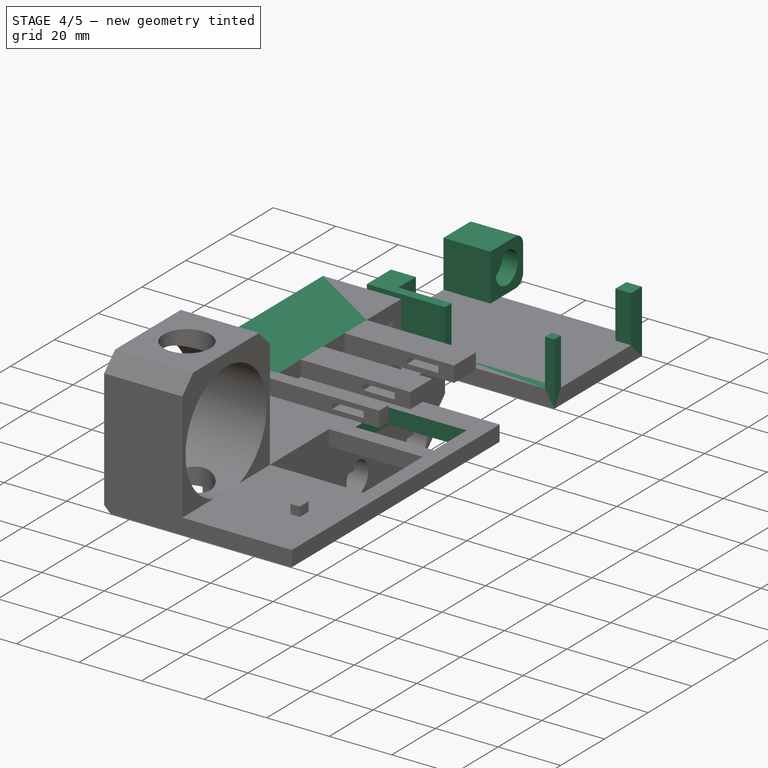
[diagram: stage 4 of 5 — iso view after this stage's code; geometry added in this stage tinted green]
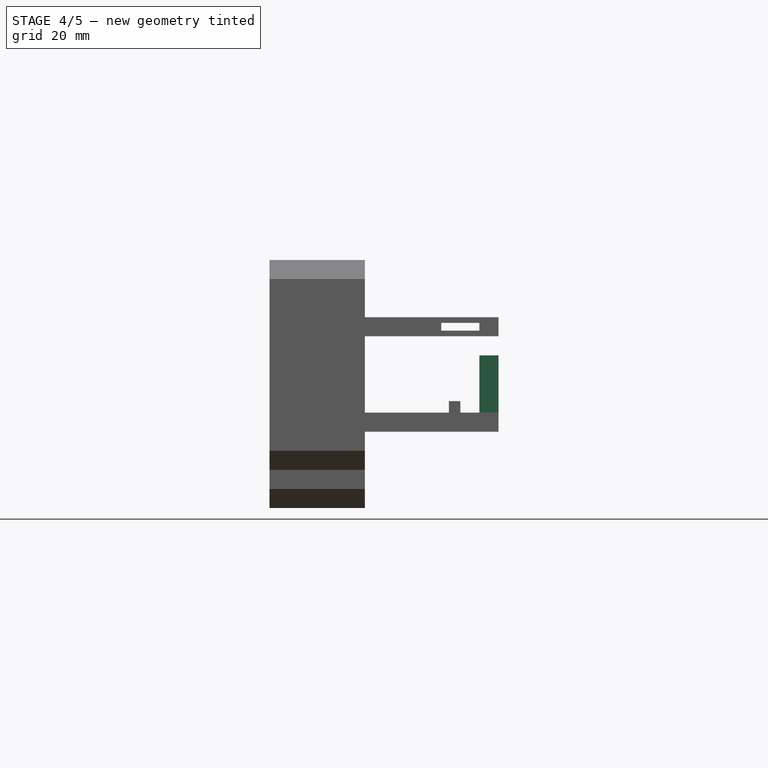
[diagram: stage 4 of 5 — front view after this stage's code; geometry added in this stage tinted green]
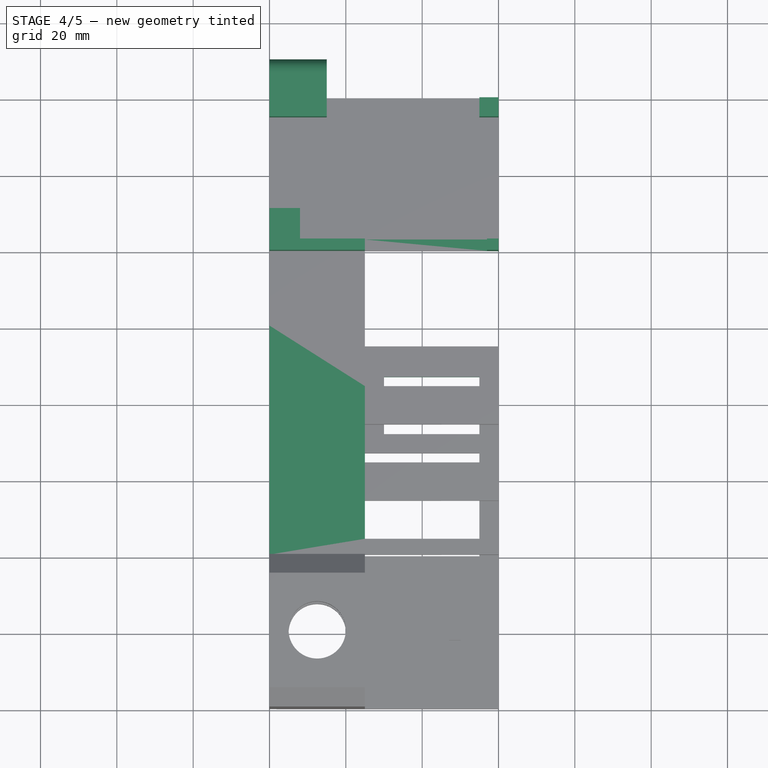
[diagram: stage 4 of 5 — top view after this stage's code; geometry added in this stage tinted green]
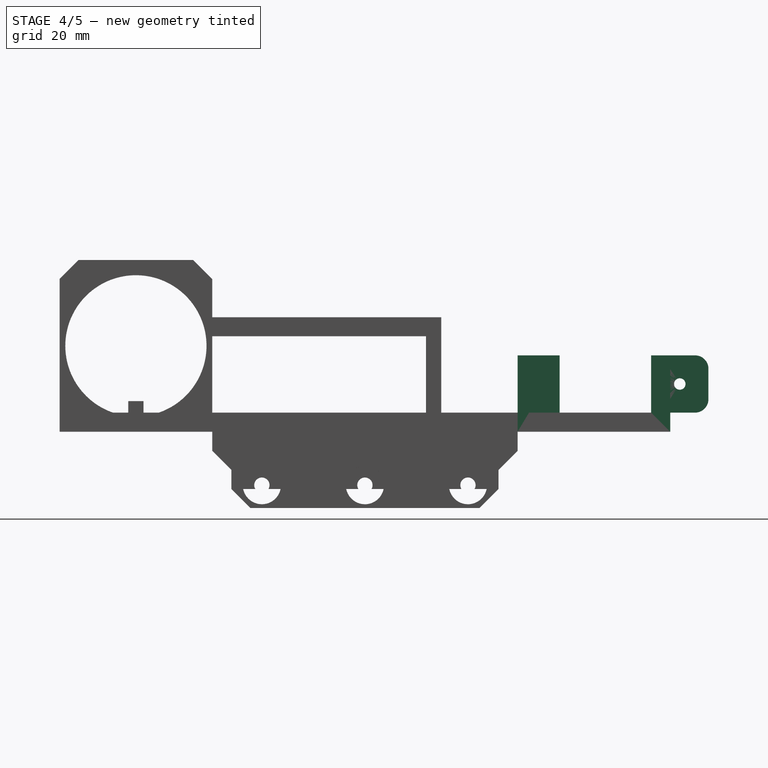
[diagram: stage 4 of 5 — right view after this stage's code; geometry added in this stage tinted green]
FEATURE [PartDesign::Pad] Pad040
  BaseFeature = -> Pocket019
  Direction = (0,0,1)
  Length = 20
  Length2 = 10
  Profile = -> Pocket019 [Face15]
  Refine = true
  Suppressed = false
  Type = 0
FEATURE [PartDesign::Pad] Pad041
  BaseFeature = -> Pad040
  Direction = (0,0,1)
  Length = 20
  Length2 = 10
  Profile = -> Pad040 [Face1]
  Refine = true
  Suppressed = false
  Type = 0
FEATURE [PartDesign::Pad] Pad042
  BaseFeature = -> Pad041
  Direction = (1,1,1)
  Length = 20
  Length2 = 10
  Profile = -> Pad041 [Face3]
  Refine = true
  Suppressed = false
  Type = 0
FEATURE [PartDesign::Chamfer] Chamfer009
  Angle = 45
  Base = -> Pad042 [Edge68]
  BaseFeature = -> Pad042
  ChamferType = 0
  FlipDirection = false
  Refine = true
  Size = 3
  Size2 = 1
  SupportTransform = false
  Suppressed = false
  UseAllEdges = false
FEATURE [PartDesign::Chamfer] Chamfer010
  Angle = 45
  Base = -> Chamfer009 [Edge40]
  BaseFeature = -> Chamfer009
  ChamferType = 0
  FlipDirection = false
  Refine = true
  Size = 3
  Size2 = 1
  SupportTransform = false
  Suppressed = false
  UseAllEdges = false
FEATURE [PartDesign::Chamfer] Chamfer011
  Angle = 45
  Base = -> Chamfer010 [Edge125]
  BaseFeature = -> Chamfer010
  ChamferType = 0
  FlipDirection = false
  Refine = true
  Size = 3
  Size2 = 1
  SupportTransform = false
  Suppressed = false
  UseAllEdges = false
FEATURE [PartDesign::Chamfer] Chamfer012
  Angle = 45
  Base = -> Chamfer011 [Edge67]
  BaseFeature = -> Chamfer011
  ChamferType = 0
  FlipDirection = false
  Refine = true
  Size = 3
  Size2 = 1
  SupportTransform = false
  Suppressed = false
  UseAllEdges = false
FEATURE [Sketcher::SketchObject] Sketch034
  ArcFitTolerance = 1e-06
  AttachmentSupport = -> [Chamfer012]
  ExternalGeometry = -> [Chamfer012]
  FullyConstrained = true
  MakeInternals = false
  MapMode = 5
  Placement = pos=(-60,0,0) rot=(0.57735,-0.57735,-0.57735;2.0944rad)
  sketch-geometry (4):
    g0: LineSegment StartX=-124 StartY=5 StartZ=0 EndX=-124 EndY=25 EndZ=0
    g1: LineSegment StartX=-124 StartY=25 StartZ=0 EndX=-160 EndY=25 EndZ=0
    g2: LineSegment StartX=-160 StartY=25 StartZ=0 EndX=-160 EndY=5 EndZ=0
    g3: LineSegment StartX=-160 StartY=5 StartZ=0 EndX=-124 EndY=5 EndZ=0
  constraints (10):
    c: Coincident(g0,g1)
    c: Coincident(g1,g2)
    c: Coincident(g2,g3)
    c: Coincident(g3,g0)
    c: Vertical(g0)
    c: Vertical(g2)
    c: Horizontal(g1)
    c: Horizontal(g3)
    c: Coincident(g0,g-4)
    c: Coincident(g1,g-5)
FEATURE [PartDesign::Pocket] Pocket020
  BaseFeature = -> Chamfer012
  Direction = (1,0,0)
  Length = 5
  Length2 = 5
  Profile = -> Sketch034
  ReferenceAxis = -> Sketch034 [N_Axis]
  Refine = true
  Suppressed = false
  Type = 1
FEATURE [PartDesign::Pocket] Pocket021
  BaseFeature = -> Pocket020
  Direction = (1,1,1)
  Length = 20
  Length2 = 5
  Profile = -> Pocket020 [Face81]
  Refine = true
  Suppressed = false
  Type = 0
FEATURE [Sketcher::SketchObject] Sketch035
  ArcFitTolerance = 1e-06
  AttachmentSupport = -> [Pocket021]
  ExternalGeometry = -> [Pocket021]
  FullyConstrained = true
  MakeInternals = false
  MapMode = 5
  Placement = pos=(-60,0,0) rot=(0.57735,-0.57735,-0.57735;2.0944rad)
  sketch-geometry (4):
    g0: LineSegment StartX=-155 StartY=5 StartZ=0 EndX=-155 EndY=20 EndZ=0
    g1: LineSegment StartX=-155 StartY=20 StartZ=0 EndX=-170 EndY=20 EndZ=0
    g2: LineSegment StartX=-170 StartY=20 StartZ=0 EndX=-170 EndY=5 EndZ=0
    g3: LineSegment StartX=-170 StartY=5 StartZ=0 EndX=-155 EndY=5 EndZ=0
  constraints (12):
    c: Coincident(g0,g1)
    c: Coincident(g1,g2)
    c: Coincident(g2,g3)
    c: Coincident(g3,g0)
    c: Vertical(g0)
    c: Vertical(g2)
    c: Horizontal(g1)
    c: Horizontal(g3)
    c: Distance(g0,g2) = 15
    c: Distance(g1,g3) = 15
    c: PointOnObject(g0,g-3)
    c: Distance(g-3,g0) = 5
FEATURE [PartDesign::Pad] Pad043
  BaseFeature = -> Pocket021
  Direction = (-1,0,0)
  Length = 15
  Length2 = 10
  Profile = -> Sketch035
  ReferenceAxis = -> Sketch035 [N_Axis]
  Refine = true
  Reversed = true
  Suppressed = false
  Type = 0
FEATURE [Sketcher::SketchObject] Sketch036
  ArcFitTolerance = 1e-06
  AttachmentSupport = -> [Pad043]
  ExternalGeometry = -> [Pad043]
  FullyConstrained = false
  MakeInternals = false
  MapMode = 5
  Placement = pos=(-60,0,0) rot=(0.57735,-0.57735,-0.57735;2.0944rad)
  sketch-geometry (3):
    g0: LineSegment [constr] StartX=-155 StartY=19.626 StartZ=0 EndX=-170 EndY=5 EndZ=0
    g1: GeomPoint [constr] X=-162.5 Y=12.313 Z=0
    g2: Circle CenterX=-162.5 CenterY=12.313 CenterZ=0 NormalX=0 NormalY=0 NormalZ=1 AngleXU=0 Radius=5.05
  constraints (5):
    c: PointOnObject(g0,g-5)
    c: Coincident(g0,g-3)
    c: Symmetric(g0,g0,g1)
    c: Diameter(g2) = 10.1
    c: Coincident(g2,g1)
FEATURE [PartDesign::Pocket] Pocket022
  BaseFeature = -> Pad043
  Direction = (1,1,1)
  Length = 5
  Length2 = 5
  Profile = -> Sketch036
  ReferenceAxis = -> Sketch036 [N_Axis]
  Refine = true
  Suppressed = false
  Type = 0
FEATURE [Sketcher::SketchObject] Sketch037
  ArcFitTolerance = 1e-06
  AttachmentSupport = -> [Pocket022]
  ExternalGeometry = -> [Pocket022]
  FullyConstrained = true
  MakeInternals = false
  MapMode = 5
  Placement = pos=(-45,0,0) rot=(0.57735,0.57735,0.57735;2.0944rad)
  sketch-geometry (3):
    g0: LineSegment [constr] StartX=170 StartY=20 StartZ=0 EndX=155 EndY=5 EndZ=0
    g1: GeomPoint [constr] X=162.5 Y=12.5 Z=0
    g2: Circle CenterX=162.5 CenterY=12.5 CenterZ=0 NormalX=0 NormalY=0 NormalZ=1 AngleXU=0 Radius=5.05
  constraints (5):
    c: Coincident(g0,g-4)
    c: Coincident(g0,g-3)
    c: Symmetric(g0,g0,g1)
    c: Diameter(g2) = 10.1
    c: Symmetric(g0,g0,g2)
FEATURE [PartDesign::Pocket] Pocket023
  BaseFeature = -> Pocket022
  Direction = (1,1,1)
  Length = 5
  Length2 = 5
  Profile = -> Sketch037
  ReferenceAxis = -> Sketch037 [N_Axis]
  Refine = true
  Suppressed = false
  Type = 0
FEATURE [Sketcher::SketchObject] Sketch038
  ArcFitTolerance = 1e-06
  AttachmentSupport = -> [Pocket023]
  ExternalGeometry = -> [Pocket023]
  FullyConstrained = true
  MakeInternals = false
  MapMode = 5
  Placement = pos=(-50,0,0) rot=(0.57735,0.57735,0.57735;2.0944rad)
  sketch-geometry (1):
    g0: Circle CenterX=162.5 CenterY=12.5 CenterZ=0 NormalX=0 NormalY=0 NormalZ=1 AngleXU=0 Radius=1.5
  constraints (2):
    c: Diameter(g0) = 3
    c: Coincident(g0,g-3)
FEATURE [PartDesign::Pocket] Pocket024
  BaseFeature = -> Pocket023
  Direction = (1,1,1)
  Length = 5
  Length2 = 5
  Profile = -> Sketch038
  ReferenceAxis = -> Sketch038 [N_Axis]
  Refine = true
  Suppressed = false
  Type = 0
FEATURE [Sketcher::SketchObject] Sketch039
  ArcFitTolerance = 1e-06
  AttachmentSupport = -> [Pocket024]
  ExternalGeometry = -> [Pocket024]
  FullyConstrained = true
  MakeInternals = false
  MapMode = 5
  Placement = pos=(0,0,5) rot=(0,0,1;0rad)
  sketch-geometry (24):
    g0: LineSegment [constr] StartX=-53 StartY=142 StartZ=0 EndX=-53 EndY=110 EndZ=0
    g1: LineSegment [constr] StartX=-53 StartY=110 StartZ=0 EndX=0 EndY=110 EndZ=0
    g2: LineSegment [constr] StartX=0 StartY=110 StartZ=0 EndX=0 EndY=142 EndZ=0
    g3: LineSegment [constr] StartX=0 StartY=142 StartZ=0 EndX=-53 EndY=142 EndZ=0
    g4: LineSegment StartX=-53 StartY=142 StartZ=0 EndX=-60 EndY=142 EndZ=0
    g5: LineSegment StartX=-60 StartY=142 StartZ=0 EndX=-60 EndY=135 EndZ=0
    g6: LineSegment StartX=-60 StartY=135 StartZ=0 EndX=-53 EndY=135 EndZ=0
    g7: LineSegment StartX=-53 StartY=135 StartZ=0 EndX=-53 EndY=142 EndZ=0
    g8: LineSegment StartX=-53 StartY=110 StartZ=0 EndX=-53 EndY=117 EndZ=0
    g9: LineSegment StartX=-53 StartY=117 StartZ=0 EndX=-60 EndY=117 EndZ=0
    g10: LineSegment StartX=-60 StartY=117 StartZ=0 EndX=-60 EndY=110 EndZ=0
    g11: LineSegment StartX=-60 StartY=110 StartZ=0 EndX=-53 EndY=110 EndZ=0
    g12: LineSegment StartX=-53 StartY=142 StartZ=0 EndX=-46 EndY=142 EndZ=0
    g13: LineSegment StartX=-46 StartY=142 StartZ=0 EndX=-46 EndY=149 EndZ=0
    g14: LineSegment StartX=-46 StartY=149 StartZ=0 EndX=-53 EndY=149 EndZ=0
    g15: LineSegment StartX=-53 StartY=149 StartZ=0 EndX=-53 EndY=142 EndZ=0
    g16: LineSegment StartX=0 StartY=142 StartZ=0 EndX=0 EndY=149 EndZ=0
    g17: LineSegment StartX=0 StartY=149 StartZ=0 EndX=-7 EndY=149 EndZ=0
    g18: LineSegment StartX=-7 StartY=149 StartZ=0 EndX=-7 EndY=142 EndZ=0
    g19: LineSegment StartX=-7 StartY=142 StartZ=0 EndX=0 EndY=142 EndZ=0
    g20: LineSegment StartX=-53 StartY=110 StartZ=0 EndX=-53 EndY=105 EndZ=0
    g21: LineSegment StartX=-53 StartY=105 StartZ=0 EndX=-35 EndY=105 EndZ=0
    g22: LineSegment StartX=-35 StartY=105 StartZ=0 EndX=-35 EndY=110 EndZ=0
    g23: LineSegment StartX=-35 StartY=110 StartZ=0 EndX=-53 EndY=110 EndZ=0
  constraints (67):
    c: Coincident(g0,g1)
    c: Coincident(g1,g2)
    c: Coincident(g2,g3)
    c: Coincident(g3,g0)
    c: Vertical(g0)
    c: Vertical(g2)
    c: Horizontal(g1)
    c: Horizontal(g3)
    c: Distance(g0,g2) = 53
    c: Distance(g1,g3) = 32
    c: DistanceY(g-3,g1) = 10
    c: DistanceX(g-3,g0) = 7
    c: Coincident(g4,g5)
    c: Coincident(g5,g6)
    c: Coincident(g6,g7)
    c: Coincident(g7,g4)
    c: Horizontal(g4)
    c: Horizontal(g6)
    c: Vertical(g5)
    c: Vertical(g7)
    c: Distance(g4,g6) = 7
    c: Coincident(g4,g0)
    c: PointOnObject(g5,g-4)
    c: Coincident(g8,g9)
    c: Coincident(g9,g10)
    c: Coincident(g10,g11)
    c: Coincident(g11,g8)
    c: Vertical(g8)
    c: Vertical(g10)
    c: Horizontal(g9)
    c: Horizontal(g11)
    c: Distance(g9,g11) = 7
    c: Coincident(g8,g0)
    c: PointOnObject(g9,g-4)
    c: Coincident(g12,g13)
    c: Coincident(g13,g14)
    c: Coincident(g14,g15)
    c: Coincident(g15,g12)
    c: Horizontal(g12)
    c: Horizontal(g14)
    c: Vertical(g13)
    c: Vertical(g15)
    c: Distance(g13,g15) = 7
    c: Distance(g12,g14) = 7
    c: Coincident(g12,g0)
    c: Coincident(g16,g17)
    c: Coincident(g17,g18)
    c: Coincident(g18,g19)
    c: Coincident(g19,g16)
    c: Vertical(g16)
    c: Vertical(g18)
    c: Horizontal(g17)
    c: Horizontal(g19)
    c: Distance(g16,g18) = 7
    c: Distance(g17,g19) = 7
    c: Coincident(g16,g2)
    c: Coincident(g20,g21)
    c: Coincident(g21,g22)
    c: Coincident(g22,g23)
    c: Coincident(g23,g20)
    c: Vertical(g20)
    c: Vertical(g22)
    c: Horizontal(g21)
    c: Horizontal(g23)
    c: Distance(g20,g22) = 18
    c: Distance(g21,g23) = 5
    c: Coincident(g20,g0)
FEATURE [PartDesign::Pad] Pad044
  BaseFeature = -> Pocket024
  Direction = (0,0,1)
  Length = 15
  Length2 = 10
  Profile = -> Sketch039
  ReferenceAxis = -> Sketch039 [N_Axis]
  Refine = true
  Suppressed = false
  Type = 0
FEATURE [PartDesign::Pad] Pad045
  BaseFeature = -> Pad044
  Direction = (0,1,0)
  Length = 54
  Length2 = 10
  Profile = -> Pad044 [Face96]
  Refine = true
  Suppressed = false
  Type = 0
FEATURE [PartDesign::Pocket] Pocket025
  BaseFeature = -> Pad045
  Direction = (1,1,1)
  Length = 35
  Length2 = 5
  Profile = -> Pad045 [Face67]
  Refine = true
  Suppressed = false
  Type = 0
FEATURE [Sketcher::SketchObject] Sketch040
  ArcFitTolerance = 1e-06
  AttachmentSupport = -> [Pocket025]
  ExternalGeometry = -> [Pocket025]
  FullyConstrained = true
  MakeInternals = false
  MapMode = 5
  Placement = pos=(-60,0,0) rot=(0.57735,-0.57735,-0.57735;2.0944rad)
  sketch-geometry (4):
    g0: LineSegment StartX=-100 StartY=5 StartZ=0 EndX=-100 EndY=20 EndZ=0
    g1: LineSegment StartX=-100 StartY=20 StartZ=0 EndX=-155 EndY=20 EndZ=0
    g2: LineSegment StartX=-155 StartY=20 StartZ=0 EndX=-155 EndY=5 EndZ=0
    g3: LineSegment StartX=-155 StartY=5 StartZ=0 EndX=-100 EndY=5 EndZ=0
  constraints (10):
    c: Coincident(g0,g1)
    c: Coincident(g1,g2)
    c: Coincident(g2,g3)
    c: Coincident(g3,g0)
    c: Vertical(g0)
    c: Vertical(g2)
    c: Horizontal(g1)
    c: Horizontal(g3)
    c: Coincident(g0,g-5)
    c: Coincident(g1,g-4)
FEATURE [PartDesign::Pocket] Pocket026
  BaseFeature = -> Pocket025
  Direction = (1,0,0)
  Length = 25
  Length2 = 5
  Profile = -> Sketch040
  ReferenceAxis = -> Sketch040 [N_Axis]
  Refine = true
  Suppressed = false
  Type = 0
FEATURE [PartDesign::Pocket] Pocket027
  BaseFeature = -> Pocket026
  Direction = (1,1,1)
  Length = 15
  Length2 = 5
  Profile = -> Pocket026 [Face79]
  Refine = true
  Suppressed = false
  Type = 0
FEATURE [Sketcher::SketchObject] Sketch041
  ArcFitTolerance = 1e-06
  AttachmentSupport = -> [Pocket027]
  ExternalGeometry = -> [Pocket027]
  FullyConstrained = true
  MakeInternals = false
  MapMode = 5
  Placement = pos=(0,0,5) rot=(0,0,1;0rad)
  sketch-geometry (21):
    g0: LineSegment [constr] StartX=-45 StartY=155 StartZ=0 EndX=0 EndY=155 EndZ=0
    g1: LineSegment [constr] StartX=0 StartY=155 StartZ=0 EndX=-52 EndY=155 EndZ=0
    g2: LineSegment [constr] StartX=-52 StartY=155 StartZ=0 EndX=-52 EndY=123 EndZ=0
    g3: LineSegment [constr] StartX=-52 StartY=123 StartZ=0 EndX=0 EndY=123 EndZ=0
    g4: LineSegment [constr] StartX=0 StartY=123 StartZ=0 EndX=0 EndY=155 EndZ=0
    g5: LineSegment StartX=0 StartY=160 StartZ=0 EndX=-5 EndY=160 EndZ=0
    g6: LineSegment StartX=-5 StartY=160 StartZ=0 EndX=-5 EndY=155 EndZ=0
    g7: LineSegment StartX=-5 StartY=155 StartZ=0 EndX=0 EndY=155 EndZ=0
    g8: LineSegment StartX=0 StartY=155 StartZ=0 EndX=0 EndY=160 EndZ=0
    g9: LineSegment StartX=0 StartY=120 StartZ=0 EndX=0 EndY=123 EndZ=0
    g10: LineSegment StartX=0 StartY=123 StartZ=0 EndX=-3 EndY=123 EndZ=0
    g11: LineSegment StartX=-3 StartY=123 StartZ=0 EndX=-3 EndY=120 EndZ=0
    g12: LineSegment StartX=-3 StartY=120 StartZ=0 EndX=0 EndY=120 EndZ=0
    g13: LineSegment StartX=-35 StartY=120 StartZ=0 EndX=-35 EndY=123 EndZ=0
    g14: LineSegment StartX=-35 StartY=123 StartZ=0 EndX=-52 EndY=123 EndZ=0
    g15: LineSegment StartX=-52 StartY=123 StartZ=0 EndX=-52 EndY=120 EndZ=0
    g16: LineSegment StartX=-52 StartY=120 StartZ=0 EndX=-35 EndY=120 EndZ=0
    g17: LineSegment StartX=-52 StartY=123 StartZ=0 EndX=-52 EndY=131 EndZ=0
    g18: LineSegment StartX=-52 StartY=131 StartZ=0 EndX=-60 EndY=131 EndZ=0
    g19: LineSegment StartX=-60 StartY=131 StartZ=0 EndX=-60 EndY=123 EndZ=0
    g20: LineSegment StartX=-60 StartY=123 StartZ=0 EndX=-52 EndY=123 EndZ=0
  constraints (57):
    c: Coincident(g0,g-3)
    c: PointOnObject(g0,g-2)
    c: Horizontal(g0)
    c: Coincident(g1,g2)
    c: Coincident(g2,g3)
    c: Coincident(g3,g4)
    c: Coincident(g4,g1)
    c: Horizontal(g1)
    c: Horizontal(g3)
    c: Vertical(g2)
    c: Vertical(g4)
    c: Distance(g2,g4) = 52
    c: Distance(g1,g3) = 32
    c: Coincident(g1,g0)
    c: Coincident(g5,g6)
    c: Coincident(g6,g7)
    c: Coincident(g7,g8)
    c: Coincident(g8,g5)
    c: Horizontal(g5)
    c: Horizontal(g7)
    c: Vertical(g6)
    c: Vertical(g8)
    c: Distance(g6,g8) = 5
    c: Coincident(g5,g-6)
    c: PointOnObject(g6,g0)
    c: Coincident(g9,g10)
    c: Coincident(g10,g11)
    c: Coincident(g11,g12)
    c: Coincident(g12,g9)
    c: Vertical(g9)
    c: Vertical(g11)
    c: Horizontal(g10)
    c: Horizontal(g12)
    c: Distance(g9,g11) = 3
    c: Coincident(g9,g-5)
    c: PointOnObject(g10,g3)
    c: Coincident(g13,g14)
    c: Coincident(g14,g15)
    c: Coincident(g15,g16)
    c: Coincident(g16,g13)
    c: Vertical(g13)
    c: Vertical(g15)
    c: Horizontal(g14)
    c: Horizontal(g16)
    c: Coincident(g13,g-8)
    c: Coincident(g14,g2)
    c: Coincident(g17,g18)
    c: Coincident(g18,g19)
    c: Coincident(g19,g20)
    c: Coincident(g20,g17)
    c: Vertical(g17)
    c: Vertical(g19)
    c: Horizontal(g18)
    c: Horizontal(g20)
    c: Distance(g18,g20) = 8
    c: Coincident(g17,g2)
    c: PointOnObject(g18,g-4)
FEATURE [PartDesign::Pad] Pad046
  BaseFeature = -> Pocket027
  Direction = (1,1,1)
  Length = 15
  Length2 = 10
  Profile = -> Sketch041
  ReferenceAxis = -> Sketch041 [N_Axis]
  Refine = true
  Suppressed = false
  Type = 0
FEATURE [Sketcher::SketchObject] Sketch042
  ArcFitTolerance = 1e-06
  AttachmentSupport = -> [Pad046]
  ExternalGeometry = -> [Pad046]
  FullyConstrained = true
  MakeInternals = false
  MapMode = 5
  Placement = pos=(0,0,0) rot=(1,0,0;3.14159rad)
  sketch-geometry (5):
    g0: LineSegment [constr] StartX=-5 StartY=-67 StartZ=0 EndX=-5 EndY=-95 EndZ=0
    g1: LineSegment StartX=-5 StartY=-72 StartZ=0 EndX=-30 EndY=-72 EndZ=0
    g2: LineSegment StartX=-30 StartY=-72 StartZ=0 EndX=-30 EndY=-87 EndZ=0
    g3: LineSegment StartX=-30 StartY=-87 StartZ=0 EndX=-5 EndY=-87 EndZ=0
    g4: LineSegment StartX=-5 StartY=-87 StartZ=0 EndX=-5 EndY=-72 EndZ=0
  constraints (15):
    c: Coincident(g0,g-3)
    c: PointOnObject(g0,g-4)
    c: Vertical(g0)
    c: Coincident(g1,g2)
    c: Coincident(g2,g3)
    c: Coincident(g3,g4)
    c: Coincident(g4,g1)
    c: Horizontal(g1)
    c: Horizontal(g3)
    c: Vertical(g2)
    c: Vertical(g4)
    c: Distance(g2,g4) = 25
    c: Distance(g1,g3) = 15
    c: PointOnObject(g1,g0)
    c: Distance(g1,g-3) = 5
FEATURE [PartDesign::Pocket] Pocket028
  BaseFeature = -> Pad046
  Direction = (1,1,1)
  Length = 5
  Length2 = 5
  Profile = -> Sketch042
  ReferenceAxis = -> Sketch042 [N_Axis]
  Refine = true
  Suppressed = false
  Type = 0
FEATURE [PartDesign::Fillet] Fillet
  Base = -> Pocket028 [Edge310,Edge312]
  BaseFeature = -> Pocket028
  Radius = 3.5
  Refine = true
  SupportTransform = false
  Suppressed = false
  UseAllEdges = false
FEATURE [PartDesign::Pad] Pad047
  BaseFeature = -> Fillet
  Direction = (1,1,1)
  Length = 8
  Length2 = 10
  Profile = -> Fillet [Face52]
  Refine = true
  Suppressed = false
  Type = 0
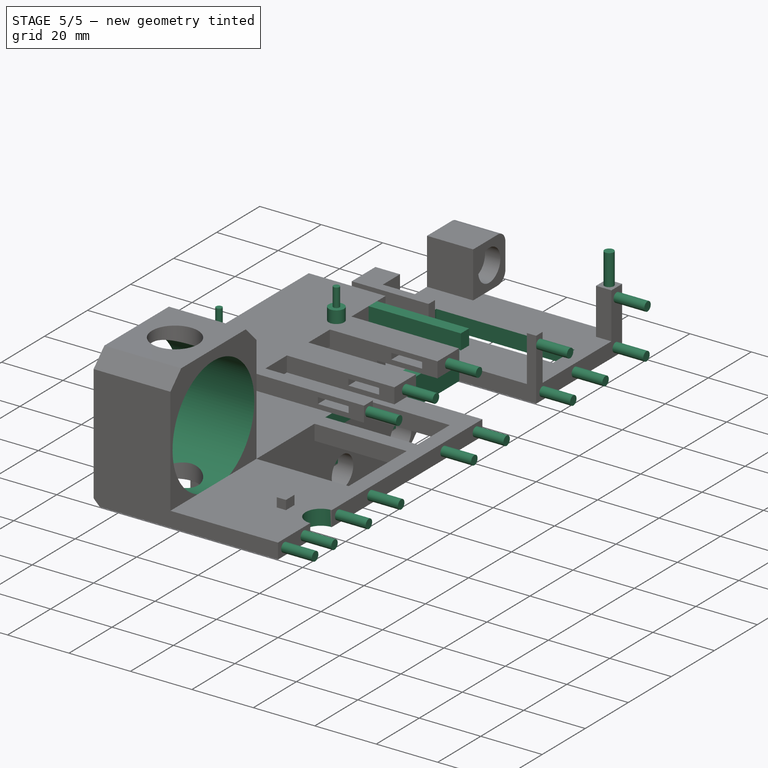
[diagram: stage 5 of 5 — iso view after this stage's code; geometry added in this stage tinted green]
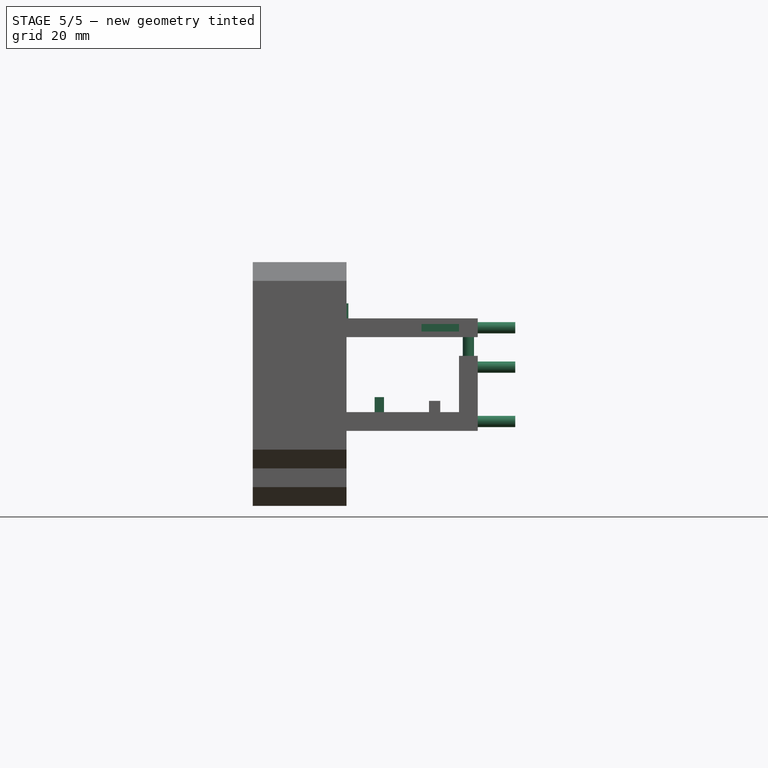
[diagram: stage 5 of 5 — front view after this stage's code; geometry added in this stage tinted green]
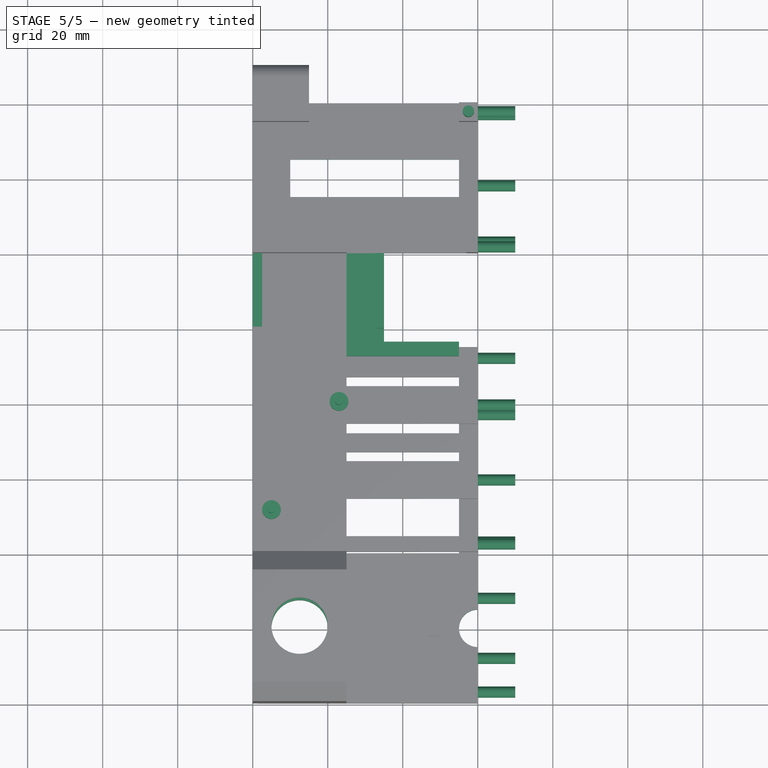
[diagram: stage 5 of 5 — top view after this stage's code; geometry added in this stage tinted green]
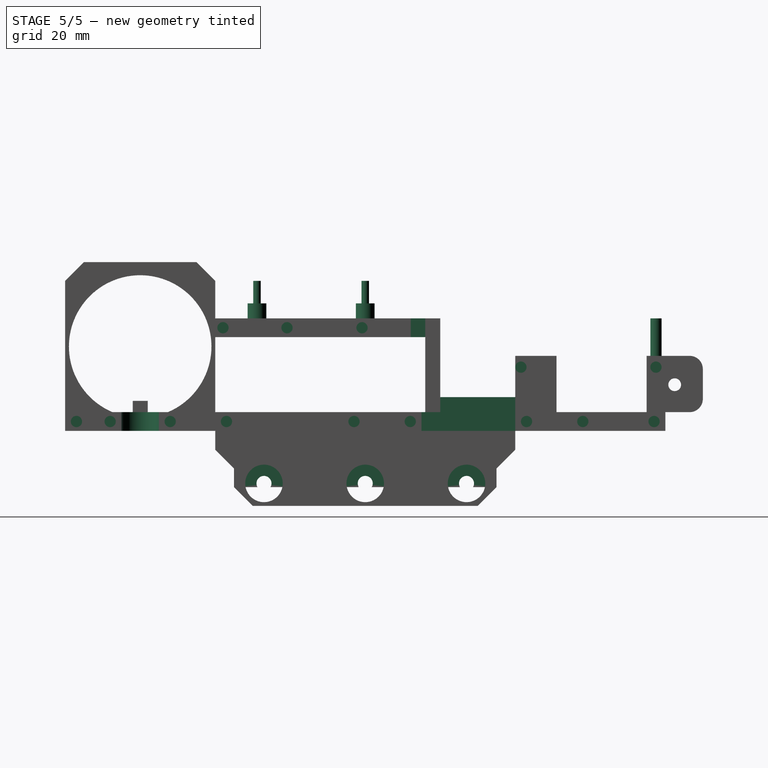
[diagram: stage 5 of 5 — right view after this stage's code; geometry added in this stage tinted green]
FEATURE [Sketcher::SketchObject] Sketch043
  ArcFitTolerance = 1e-06
  AttachmentSupport = -> [Pad047]
  FullyConstrained = true
  MakeInternals = false
  MapMode = 5
  Placement = pos=(0,0,30) rot=(0,0,1;0rad)
FEATURE [Sketcher::SketchObject] Sketch044
  ArcFitTolerance = 1e-06
  AttachmentSupport = -> [Pad047]
  ExternalGeometry = -> [Pad047]
  FullyConstrained = true
  MakeInternals = false
  MapMode = 5
  Placement = pos=(-60,0,0) rot=(0.57735,-0.57735,-0.57735;2.0944rad)
  sketch-geometry (4):
    g0: Circle CenterX=-162.5 CenterY=12.313 CenterZ=0 NormalX=0 NormalY=0 NormalZ=1 AngleXU=0 Radius=5.05
    g1: Circle CenterX=-107 CenterY=-14 CenterZ=0 NormalX=0 NormalY=0 NormalZ=1 AngleXU=0 Radius=5
    g2: Circle CenterX=-80 CenterY=-14 CenterZ=0 NormalX=0 NormalY=0 NormalZ=1 AngleXU=0 Radius=5
    g3: Circle CenterX=-53 CenterY=-14 CenterZ=0 NormalX=0 NormalY=0 NormalZ=1 AngleXU=0 Radius=5
  constraints (8):
    c: Coincident(g0,g-3)
    c: Equal(g0,g-3)
    c: Coincident(g1,g-4)
    c: Equal(g1,g-4)
    c: Coincident(g2,g-5)
    c: Equal(g2,g-5)
    c: Coincident(g3,g-6)
    c: Equal(g3,g-6)
FEATURE [PartDesign::Pocket] Pocket029
  BaseFeature = -> Pad047
  Direction = (1,1,1)
  Length = 5
  Length2 = 5
  Profile = -> Sketch044
  ReferenceAxis = -> Sketch044 [N_Axis]
  Refine = true
  Suppressed = false
  Type = 0
FEATURE [Sketcher::SketchObject] Sketch045
  ArcFitTolerance = 1e-06
  AttachmentSupport = -> [Pocket029]
  ExternalGeometry = -> [Pocket029]
  FullyConstrained = true
  MakeInternals = false
  MapMode = 5
  Placement = pos=(-60,0,0) rot=(0.57735,-0.57735,-0.57735;2.0944rad)
  sketch-geometry (1):
    g0: Circle CenterX=-162.5 CenterY=12.313 CenterZ=0 NormalX=0 NormalY=0 NormalZ=1 AngleXU=0 Radius=1.7
  constraints (2):
    c: Diameter(g0) = 3.4
    c: Coincident(g0,g-3)
FEATURE [PartDesign::Pocket] Pocket030
  BaseFeature = -> Pocket029
  Direction = (1,1,1)
  Length = 5
  Length2 = 5
  Profile = -> Sketch045
  ReferenceAxis = -> Sketch045 [N_Axis]
  Refine = true
  Suppressed = false
  Type = 1
FEATURE [PartDesign::Fillet] Fillet001
  Base = -> Pocket030 [Edge325,Edge308,Edge317,Edge12,Edge80,Edge81,Edge82]
  BaseFeature = -> Pocket030
  Radius = 0.5
  Refine = true
  SupportTransform = false
  Suppressed = false
  UseAllEdges = false
FEATURE [Sketcher::SketchObject] Sketch046
  ArcFitTolerance = 1e-06
  AttachmentSupport = -> [Fillet001]
  ExternalGeometry = -> [Fillet001]
  FullyConstrained = true
  MakeInternals = false
  MapMode = 5
  Placement = pos=(-45,0,0) rot=(0.57735,0.57735,0.57735;2.0944rad)
  sketch-geometry (1):
    g0: Circle CenterX=162.5 CenterY=12.5 CenterZ=0 NormalX=0 NormalY=0 NormalZ=1 AngleXU=0 Radius=5.15
  constraints (2):
    c: Diameter(g0) = 10.3
    c: Coincident(g0,g-3)
FEATURE [PartDesign::Pocket] Pocket031
  BaseFeature = -> Fillet001
  Direction = (1,1,1)
  Length = 5
  Length2 = 5
  Profile = -> Sketch046
  ReferenceAxis = -> Sketch046 [N_Axis]
  Refine = true
  Suppressed = false
  Type = 0
FEATURE [Sketcher::SketchObject] Sketch047
  ArcFitTolerance = 1e-06
  AttachmentSupport = -> [Pocket031]
  ExternalGeometry = -> [Pocket031]
  FullyConstrained = true
  MakeInternals = false
  MapMode = 5
  Placement = pos=(-35,0,0) rot=(0.57735,0.57735,0.57735;2.0944rad)
  sketch-geometry (3):
    g0: Circle CenterX=53 CenterY=-14 CenterZ=0 NormalX=0 NormalY=0 NormalZ=1 AngleXU=0 Radius=5
    g1: Circle CenterX=80 CenterY=-14 CenterZ=0 NormalX=0 NormalY=0 NormalZ=1 AngleXU=0 Radius=5
    g2: Circle CenterX=107 CenterY=-14 CenterZ=0 NormalX=0 NormalY=0 NormalZ=1 AngleXU=0 Radius=5
  constraints (6):
    c: Coincident(g0,g-3)
    c: Equal(g0,g-3)
    c: Coincident(g1,g-4)
    c: Equal(g1,g-4)
    c: Coincident(g2,g-5)
    c: Equal(g2,g-5)
FEATURE [PartDesign::Pocket] Pocket032
  BaseFeature = -> Pocket031
  Direction = (1,1,1)
  Length = 5
  Length2 = 5
  Profile = -> Sketch047
  ReferenceAxis = -> Sketch047 [N_Axis]
  Refine = true
  Suppressed = false
  Type = 0
FEATURE [Sketcher::SketchObject] Sketch048
  ArcFitTolerance = 1e-06
  AttachmentSupport = -> [Pocket032]
  ExternalGeometry = -> [Pocket032]
  FullyConstrained = true
  MakeInternals = false
  MapMode = 5
  Placement = pos=(0,0,5) rot=(0,0,1;0rad)
  sketch-geometry (4):
    g0: LineSegment StartX=-50 StartY=145 StartZ=0 EndX=-50 EndY=135 EndZ=0
    g1: LineSegment StartX=-50 StartY=135 StartZ=0 EndX=-5 EndY=135 EndZ=0
    g2: LineSegment StartX=-5 StartY=135 StartZ=0 EndX=-5 EndY=145 EndZ=0
    g3: LineSegment StartX=-5 StartY=145 StartZ=0 EndX=-50 EndY=145 EndZ=0
  constraints (12):
    c: Coincident(g0,g1)
    c: Coincident(g1,g2)
    c: Coincident(g2,g3)
    c: Coincident(g3,g0)
    c: Vertical(g0)
    c: Vertical(g2)
    c: Horizontal(g1)
    c: Horizontal(g3)
    c: Distance(g0,g2) = 45
    c: Distance(g1,g3) = 10
    c: Distance(g0,g-4) = 10
    c: Distance(g2,g-3) = 15
FEATURE [PartDesign::Pocket] Pocket033
  BaseFeature = -> Pocket032
  Direction = (1,1,1)
  Length = 5
  Length2 = 5
  Profile = -> Sketch048
  ReferenceAxis = -> Sketch048 [N_Axis]
  Refine = true
  Suppressed = false
  Type = 0
FEATURE [PartDesign::Fillet] Fillet002
  Base = -> Pocket033 [Edge89,Edge21,Edge88,Edge87]
  BaseFeature = -> Pocket033
  Radius = 0.5
  Refine = true
  SupportTransform = false
  Suppressed = false
  UseAllEdges = false
FEATURE [Sketcher::SketchObject] Sketch049
  ArcFitTolerance = 1e-06
  AttachmentSupport = -> [Fillet002]
  ExternalGeometry = -> [Fillet002]
  FullyConstrained = true
  MakeInternals = false
  MapMode = 5
  Placement = pos=(0,0,5) rot=(0,0,1;0rad)
  sketch-geometry (1):
    g0: Circle CenterX=0 CenterY=20 CenterZ=0 NormalX=0 NormalY=0 NormalZ=1 AngleXU=0 Radius=5
  constraints (3):
    c: Diameter(g0) = 10
    c: PointOnObject(g0,g-2)
    c: DistanceY(g-1,g0) = 20
FEATURE [PartDesign::Pocket] Pocket034
  BaseFeature = -> Fillet002
  Direction = (0,0,-1)
  Length = 5
  Length2 = 5
  Profile = -> Sketch049
  ReferenceAxis = -> Sketch049 [N_Axis]
  Refine = true
  Suppressed = false
  Type = 0
FEATURE [PartDesign::Pad] Pad048
  BaseFeature = -> Pocket034
  Direction = (1,1,1)
  Length = 10
  Length2 = 10
  Profile = -> Pocket034 [Face63]
  Refine = true
  Suppressed = false
  Type = 0
FEATURE [Sketcher::SketchObject] Sketch050
  ArcFitTolerance = 1e-06
  AttachmentSupport = -> [Pad048]
  FullyConstrained = true
  MakeInternals = false
  MapMode = 5
  Placement = pos=(0,0,5) rot=(0,0,1;0rad)
  sketch-geometry (1):
    g0: Circle CenterX=0 CenterY=20 CenterZ=0 NormalX=0 NormalY=0 NormalZ=1 AngleXU=0 Radius=5
  constraints (3):
    c: Diameter(g0) = 10
    c: PointOnObject(g0,g-2)
    c: DistanceY(g-1,g0) = 20
FEATURE [PartDesign::Pocket] Pocket035
  BaseFeature = -> Pad048
  Direction = (1,1,1)
  Length = 5
  Length2 = 5
  Profile = -> Sketch050
  ReferenceAxis = -> Sketch050 [N_Axis]
  Refine = true
  Suppressed = false
  Type = 0
FEATURE [Sketcher::SketchObject] Sketch051
  ArcFitTolerance = 1e-06
  AttachmentSupport = -> [Pocket035]
  ExternalGeometry = -> [Pocket035]
  FullyConstrained = true
  MakeInternals = false
  MapMode = 5
  Placement = pos=(-1e-16,0,0) rot=(0.57735,0.57735,0.57735;2.0944rad)
  sketch-geometry (27):
    g0: GeomPoint X=95 Y=2.5 Z=0
    g1: LineSegment [constr] StartX=95 StartY=2.5 StartZ=0 EndX=160 EndY=2.5 EndZ=0
    g2: LineSegment [constr] StartX=95 StartY=2.5 StartZ=0 EndX=0 EndY=2.5 EndZ=0
    g3: Circle CenterX=3 CenterY=2.5 CenterZ=0 NormalX=0 NormalY=0 NormalZ=1 AngleXU=0 Radius=1.5
    g4: Circle CenterX=12 CenterY=2.5 CenterZ=0 NormalX=0 NormalY=0 NormalZ=1 AngleXU=0 Radius=1.5
    g5: Circle CenterX=28 CenterY=2.5 CenterZ=0 NormalX=0 NormalY=0 NormalZ=1 AngleXU=0 Radius=1.5
    g6: Circle CenterX=43 CenterY=2.5 CenterZ=0 NormalX=0 NormalY=0 NormalZ=1 AngleXU=0 Radius=1.5
    g7: Circle CenterX=77 CenterY=2.5 CenterZ=0 NormalX=0 NormalY=0 NormalZ=1 AngleXU=0 Radius=1.5
    g8: Circle CenterX=92 CenterY=2.5 CenterZ=0 NormalX=0 NormalY=0 NormalZ=1 AngleXU=0 Radius=1.5
    g9: Circle CenterX=123 CenterY=2.5 CenterZ=0 NormalX=0 NormalY=0 NormalZ=1 AngleXU=0 Radius=1.5
    g10: Circle CenterX=157 CenterY=2.5 CenterZ=0 NormalX=0 NormalY=0 NormalZ=1 AngleXU=0 Radius=1.5
    g11: Circle CenterX=138 CenterY=2.5 CenterZ=0 NormalX=0 NormalY=0 NormalZ=1 AngleXU=0 Radius=1.5
    g12: LineSegment [constr] StartX=40 StartY=25 StartZ=0 EndX=44.1431 EndY=30 EndZ=0
    g13: LineSegment [constr] StartX=54.1431 StartY=25 StartZ=0 EndX=64.1431 EndY=30 EndZ=0
    g14: LineSegment [constr] StartX=74.1431 StartY=25 StartZ=0 EndX=84.1431 EndY=30 EndZ=0
    g15: GeomPoint [constr] X=79.1431 Y=27.5 Z=0
    g16: GeomPoint [constr] X=59.1431 Y=27.5 Z=0
    g17: GeomPoint [constr] X=42.0716 Y=27.5 Z=0
    g18: Circle CenterX=42.0716 CenterY=27.5 CenterZ=0 NormalX=0 NormalY=0 NormalZ=1 AngleXU=0 Radius=1.5
    g19: Circle CenterX=59.1431 CenterY=27.5 CenterZ=0 NormalX=0 NormalY=0 NormalZ=1 AngleXU=0 Radius=1.5
    g20: Circle CenterX=79.1431 CenterY=27.5 CenterZ=0 NormalX=0 NormalY=0 NormalZ=1 AngleXU=0 Radius=1.5
    g21: LineSegment [constr] StartX=155 StartY=5 StartZ=0 EndX=160 EndY=20 EndZ=0
    g22: GeomPoint [constr] X=157.5 Y=12.5 Z=0
    g23: LineSegment [constr] StartX=157.5 StartY=12.5 StartZ=0 EndX=157.5 EndY=20 EndZ=0
    g24: Circle CenterX=157.5 CenterY=17 CenterZ=0 NormalX=0 NormalY=0 NormalZ=1 AngleXU=0 Radius=1.5
    g25: LineSegment [constr] StartX=157.5 StartY=17 StartZ=0 EndX=120 EndY=17 EndZ=0
    g26: Circle CenterX=121.5 CenterY=17 CenterZ=0 NormalX=0 NormalY=0 NormalZ=1 AngleXU=0 Radius=1.5
  constraints (63):
    c: Symmetric(g-16,g-16,g0)
    c: Coincident(g1,g0)
    c: PointOnObject(g1,g-17)
    c: Horizontal(g1)
    c: Coincident(g2,g0)
    c: PointOnObject(g2,g-2)
    c: Horizontal(g2)
    c: Diameter(g3) = 3
    c: PointOnObject(g3,g2)
    c: Diameter(g4) = 3
    c: PointOnObject(g4,g2)
    c: Diameter(g5) = 3
    c: PointOnObject(g5,g2)
    c: Diameter(g6) = 3
    c: PointOnObject(g6,g2)
    c: Diameter(g7) = 3
    c: PointOnObject(g7,g2)
    c: Diameter(g8) = 3
    c: PointOnObject(g8,g2)
    c: Diameter(g9) = 3
    c: PointOnObject(g9,g1)
    c: Diameter(g10) = 3
    c: PointOnObject(g10,g1)
    c: Diameter(g11) = 3
    c: PointOnObject(g11,g1)
    c: Distance(g9,g-20) = 3
    c: Distance(g10,g-17) = 3
    c: DistanceX(g9,g11) = 15
    c: Distance(g8,g-16) = 3
    c: Distance(g4,g-14) = 3
    c: Distance(g3,g-2) = 3
    c: Distance(g5,g-13) = 3
    c: DistanceX(g7,g8) = 15
    c: DistanceX(g5,g6) = 15
    c: Coincident(g12,g-10)
    c: Coincident(g12,g-11)
    c: Coincident(g13,g-3)
    c: Coincident(g13,g-5)
    c: Coincident(g14,g-6)
    c: Coincident(g14,g-8)
    c: Symmetric(g14,g14,g15)
    c: Symmetric(g13,g13,g16)
    c: Symmetric(g12,g12,g17)
    c: Diameter(g18) = 3
    c: Coincident(g18,g17)
    c: Diameter(g19) = 3
    c: Coincident(g19,g16)
    c: Diameter(g20) = 3
    c: Coincident(g20,g15)
    c: Coincident(g21,g-19)
    c: Coincident(g21,g-18)
    c: Symmetric(g21,g21,g22)
    c: Coincident(g23,g22)
    c: Symmetric(g-18,g-18,g23)
    c: Diameter(g24) = 3
    c: PointOnObject(g24,g23)
    c: DistanceY(g24,g23) = 3
    c: Coincident(g25,g24)
    c: PointOnObject(g25,g-20)
    c: Horizontal(g25)
    c: Diameter(g26) = 3
    c: PointOnObject(g26,g25)
    c: Distance(g26,g-21) = 1.5
FEATURE [PartDesign::Pad] Pad049
  BaseFeature = -> Pocket035
  Direction = (1,0,0)
  Length = 10
  Length2 = 10
  Profile = -> Sketch051
  ReferenceAxis = -> Sketch051 [N_Axis]
  Refine = true
  Suppressed = false
  Type = 0
FEATURE [PartDesign::Pocket] Pocket036
  BaseFeature = -> Pad049
  Direction = (1,1,1)
  Length = 10
  Length2 = 5
  Profile = -> Pad049 [Face156]
  Refine = true
  Suppressed = false
  Type = 0
FEATURE [Sketcher::SketchObject] Sketch052
  ArcFitTolerance = 1e-06
  AttachmentSupport = -> [Pocket036]
  ExternalGeometry = -> [Pocket036]
  FullyConstrained = true
  MakeInternals = false
  MapMode = 5
  Placement = pos=(0,0,20) rot=(0,0,1;0rad)
  sketch-geometry (3):
    g0: LineSegment [constr] StartX=-5 StartY=155 StartZ=0 EndX=0 EndY=160 EndZ=0
    g1: GeomPoint [constr] X=-2.5 Y=157.5 Z=0
    g2: Circle CenterX=-2.5 CenterY=157.5 CenterZ=0 NormalX=0 NormalY=0 NormalZ=1 AngleXU=0 Radius=1.5
  constraints (5):
    c: Coincident(g0,g-4)
    c: Coincident(g0,g-5)
    c: Symmetric(g0,g0,g1)
    c: Diameter(g2) = 3
    c: Coincident(g2,g1)
FEATURE [PartDesign::Pad] Pad050
  BaseFeature = -> Pocket036
  Direction = (1,1,1)
  Length = 10
  Length2 = 10
  Profile = -> Sketch052
  ReferenceAxis = -> Sketch052 [N_Axis]
  Refine = true
  Suppressed = false
  Type = 0
FEATURE [Sketcher::SketchObject] Sketch053
  ArcFitTolerance = 1e-06
  AttachmentSupport = -> [Pad050]
  ExternalGeometry = -> [Pad050]
  FullyConstrained = true
  MakeInternals = false
  MapMode = 5
  Placement = pos=(0,0,30) rot=(0,0,1;0rad)
  sketch-geometry (7):
    g0: Circle CenterX=-37 CenterY=80 CenterZ=0 NormalX=0 NormalY=0 NormalZ=1 AngleXU=0 Radius=2.5
    g1: Circle CenterX=-55 CenterY=51.1556 CenterZ=0 NormalX=0 NormalY=0 NormalZ=1 AngleXU=0 Radius=2.5
    g2: LineSegment [constr] StartX=-37 StartY=80 StartZ=0 EndX=-55 EndY=51.1556 EndZ=0
    g3: LineSegment [constr] StartX=-55 StartY=80 StartZ=0 EndX=-55 EndY=51.1556 EndZ=0
    g4: LineSegment [constr] StartX=-55 StartY=51.1556 StartZ=0 EndX=-37 EndY=51.1556 EndZ=0
    g5: LineSegment [constr] StartX=-37 StartY=51.1556 StartZ=0 EndX=-37 EndY=80 EndZ=0
    g6: LineSegment [constr] StartX=-37 StartY=80 StartZ=0 EndX=-55 EndY=80 EndZ=0
  constraints (18):
    c: Diameter(g0) = 5
    c: Diameter(g1) = 5
    c: Coincident(g2,g0)
    c: Coincident(g2,g1)
    c: Distance(g2,g2) = 34
    c: Coincident(g3,g4)
    c: Coincident(g4,g5)
    c: Coincident(g5,g6)
    c: Coincident(g6,g3)
    c: Vertical(g3)
    c: Vertical(g5)
    c: Horizontal(g4)
    c: Horizontal(g6)
    c: Distance(g3,g5) = 18
    c: Coincident(g0,g5)
    c: Coincident(g1,g3)
    c: Distance(g-6,g5) = 2
    c: Distance(g3,g-4) = 20
FEATURE [PartDesign::Pad] Pad051
  BaseFeature = -> Pad050
  Direction = (1,1,1)
  Length = 4
  Length2 = 10
  Profile = -> Sketch053
  ReferenceAxis = -> Sketch053 [N_Axis]
  Refine = true
  Suppressed = false
  Type = 0
FEATURE [Sketcher::SketchObject] Sketch054
  ArcFitTolerance = 1e-06
  AttachmentSupport = -> [Pad051]
  ExternalGeometry = -> [Pad051]
  FullyConstrained = true
  MakeInternals = false
  MapMode = 5
  Placement = pos=(0,0,34) rot=(0,0,1;0rad)
  sketch-geometry (2):
    g0: Circle CenterX=-37 CenterY=80 CenterZ=0 NormalX=0 NormalY=0 NormalZ=1 AngleXU=0 Radius=1
    g1: Circle CenterX=-55 CenterY=51.1556 CenterZ=0 NormalX=0 NormalY=0 NormalZ=1 AngleXU=0 Radius=1
  constraints (4):
    c: Diameter(g0) = 2
    c: Coincident(g0,g-3)
    c: Diameter(g1) = 2
    c: Coincident(g1,g-4)
FEATURE [PartDesign::Pad] Pad052
  BaseFeature = -> Pad051
  Direction = (1,1,1)
  Length = 6
  Length2 = 10
  Profile = -> Sketch054
  ReferenceAxis = -> Sketch054 [N_Axis]
  Refine = true
  Suppressed = false
  Type = 0
FEATURE [Sketcher::SketchObject] Sketch055
  ArcFitTolerance = 1e-06
  AttachmentSupport = -> [Pad052]
  ExternalGeometry = -> [Pad052]
  FullyConstrained = true
  MakeInternals = false
  MapMode = 5
  Placement = pos=(-35,0,0) rot=(0.57735,0.57735,0.57735;2.0944rad)
  sketch-geometry (4):
    g0: LineSegment StartX=96 StartY=25 StartZ=0 EndX=96 EndY=30 EndZ=0
    g1: LineSegment StartX=96 StartY=30 StartZ=0 EndX=92.1431 EndY=30 EndZ=0
    g2: LineSegment StartX=92.1431 StartY=30 StartZ=0 EndX=92.1431 EndY=25 EndZ=0
    g3: LineSegment StartX=92.1431 StartY=25 StartZ=0 EndX=96 EndY=25 EndZ=0
  constraints (12):
    c: Coincident(g0,g1)
    c: Coincident(g1,g2)
    c: Coincident(g2,g3)
    c: Coincident(g3,g0)
    c: Vertical(g0)
    c: Vertical(g2)
    c: Horizontal(g1)
    c: Horizontal(g3)
    c: PointOnObject(g0,g-4)
    c: PointOnObject(g1,g-3)
    c: DistanceX(g-3,g1) = 8
    c: Distance(g0,g-5) = 4
FEATURE [PartDesign::Pad] Pad053
  BaseFeature = -> Pad052
  Direction = (1,1,1)
  Length = 30
  Length2 = 10
  Profile = -> Sketch055
  ReferenceAxis = -> Sketch055 [N_Axis]
  Refine = true
  Suppressed = false
  Type = 0
FEATURE [Sketcher::SketchObject] Sketch056
  ArcFitTolerance = 1e-06
  AttachmentSupport = -> [Pad053]
  ExternalGeometry = -> [Pad053]
  FullyConstrained = true
  MakeInternals = false
  MapMode = 5
  Placement = pos=(-35,0,0) rot=(0.57735,0.57735,0.57735;2.0944rad)
  sketch-geometry (4):
    g0: LineSegment StartX=100 StartY=5 StartZ=0 EndX=100 EndY=0 EndZ=0
    g1: LineSegment StartX=100 StartY=0 StartZ=0 EndX=120 EndY=0 EndZ=0
    g2: LineSegment StartX=120 StartY=0 StartZ=0 EndX=120 EndY=5 EndZ=0
    g3: LineSegment StartX=120 StartY=5 StartZ=0 EndX=100 EndY=5 EndZ=0
  constraints (11):
    c: Coincident(g0,g1)
    c: Coincident(g1,g2)
    c: Coincident(g2,g3)
    c: Coincident(g3,g0)
    c: Vertical(g0)
    c: Vertical(g2)
    c: Horizontal(g1)
    c: Horizontal(g3)
    c: Coincident(g0,g-3)
    c: PointOnObject(g1,g-1)
    c: DistanceX(g3,g3) = 20
FEATURE [PartDesign::Pad] Pad054
  BaseFeature = -> Pad053
  Direction = (1,1,1)
  Length = 10
  Length2 = 10
  Profile = -> Sketch056
  ReferenceAxis = -> Sketch056 [N_Axis]
  Refine = true
  Suppressed = false
  Type = 0
FEATURE [Sketcher::SketchObject] Sketch057
  ArcFitTolerance = 1e-06
  AttachmentSupport = -> [Pad054]
  ExternalGeometry = -> [Pad054]
  FullyConstrained = true
  MakeInternals = false
  MapMode = 5
  Placement = pos=(0,0,5) rot=(0,0,1;0rad)
FEATURE [Sketcher::SketchObject] Sketch058
  ArcFitTolerance = 1e-06
  AttachmentSupport = -> [Pad054]
  ExternalGeometry = -> [Pad054]
  FullyConstrained = true
  MakeInternals = false
  MapMode = 5
  Placement = pos=(0,0,5) rot=(0,0,1;0rad)
  sketch-geometry (8):
    g0: LineSegment StartX=-60 StartY=100 StartZ=0 EndX=-57.5 EndY=100 EndZ=0
    g1: LineSegment StartX=-57.5 StartY=100 StartZ=0 EndX=-57.5 EndY=120 EndZ=0
    g2: LineSegment StartX=-57.5 StartY=120 StartZ=0 EndX=-60 EndY=120 EndZ=0
    g3: LineSegment StartX=-60 StartY=120 StartZ=0 EndX=-60 EndY=100 EndZ=0
    g4: LineSegment StartX=-25 StartY=120 StartZ=0 EndX=-27.5 EndY=120 EndZ=0
    g5: LineSegment StartX=-27.5 StartY=120 StartZ=0 EndX=-27.5 EndY=100 EndZ=0
    g6: LineSegment StartX=-27.5 StartY=100 StartZ=0 EndX=-25 EndY=100 EndZ=0
    g7: LineSegment StartX=-25 StartY=100 StartZ=0 EndX=-25 EndY=120 EndZ=0
  constraints (22):
    c: Coincident(g0,g1)
    c: Coincident(g1,g2)
    c: Coincident(g2,g3)
    c: Coincident(g3,g0)
    c: Horizontal(g0)
    c: Horizontal(g2)
    c: Vertical(g1)
    c: Vertical(g3)
    c: Distance(g1,g3) = 2.5
    c: Coincident(g0,g-4)
    c: PointOnObject(g1,g-5)
    c: Coincident(g4,g5)
    c: Coincident(g5,g6)
    c: Coincident(g6,g7)
    c: Coincident(g7,g4)
    c: Horizontal(g4)
    c: Horizontal(g6)
    c: Vertical(g5)
    c: Vertical(g7)
    c: Distance(g5,g7) = 2.5
    c: Distance(g4,g6) = 20
    c: Coincident(g4,g-3)
FEATURE [PartDesign::Pad] Pad055
  BaseFeature = -> Pad054
  Direction = (1,1,1)
  Length = 4
  Length2 = 10
  Profile = -> Sketch058
  ReferenceAxis = -> Sketch058 [N_Axis]
  Refine = true
  Suppressed = false
  Type = 0
FEATURE [Sketcher::SketchObject] Sketch059
  ArcFitTolerance = 1e-06
  AttachmentSupport = -> [Pad055]
  ExternalGeometry = -> [Pad055]
  FullyConstrained = true
  MakeInternals = false
  MapMode = 5
  Placement = pos=(0,100,0) rot=(1,0,0;1.5708rad)
  sketch-geometry (4):
    g0: LineSegment StartX=-35 StartY=5 StartZ=0 EndX=-35 EndY=0 EndZ=0
    g1: LineSegment StartX=-35 StartY=0 StartZ=0 EndX=-25 EndY=0 EndZ=0
    g2: LineSegment StartX=-25 StartY=0 StartZ=0 EndX=-25 EndY=5 EndZ=0
    g3: LineSegment StartX=-25 StartY=5 StartZ=0 EndX=-35 EndY=5 EndZ=0
  constraints (12):
    c: Coincident(g0,g1)
    c: Coincident(g1,g2)
    c: Coincident(g2,g3)
    c: Coincident(g3,g0)
    c: Vertical(g0)
    c: Vertical(g2)
    c: Horizontal(g1)
    c: Horizontal(g3)
    c: Distance(g0,g2) = 10
    c: Distance(g1,g3) = 5
    c: PointOnObject(g0,g-3)
    c: DistanceX(g-3,g2) = 10
FEATURE [PartDesign::Pad] Pad056
  BaseFeature = -> Pad055
  Direction = (1,1,1)
  Length = 10
  Length2 = 10
  Profile = -> Sketch059
  ReferenceAxis = -> Sketch059 [N_Axis]
  Refine = true
  Suppressed = false
  Type = 0
FEATURE [Sketcher::SketchObject] Sketch060
  ArcFitTolerance = 1e-06
  AttachmentSupport = -> [Pad056]
  ExternalGeometry = -> [Pad056]
  FullyConstrained = true
  MakeInternals = false
  MapMode = 5
  Placement = pos=(-60,0,0) rot=(0.57735,-0.57735,-0.57735;2.0944rad)
  sketch-geometry (1):
    g0: Circle CenterX=-20 CenterY=22.5 CenterZ=0 NormalX=0 NormalY=0 NormalZ=1 AngleXU=0 Radius=19
  constraints (2):
    c: Coincident(g0,g-3)
    c: Equal(g0,g-3)
FEATURE [PartDesign::Pocket] Pocket037
  BaseFeature = -> Pad056
  Direction = (1,0,0)
  Length = 25
  Length2 = 5
  Profile = -> Sketch060
  ReferenceAxis = -> Sketch060 [N_Axis]
  Refine = true
  Suppressed = false
  Type = 0
FEATURE [PartDesign::Pocket] Pocket038
  BaseFeature = -> Pocket037
  Direction = (1,1,1)
  Length = 5
  Length2 = 5
  Profile = -> Pocket037 [Face63]
  Refine = true
  Suppressed = false
  Type = 0
FEATURE [Sketcher::SketchObject] Sketch061
  ArcFitTolerance = 1e-06
  AttachmentSupport = -> [Pocket038]
  ExternalGeometry = -> [Pocket038]
  FullyConstrained = true
  MakeInternals = false
  MapMode = 5
  Placement = pos=(-60,0,0) rot=(0.57735,-0.57735,-0.57735;2.0944rad)
  sketch-geometry (5):
    g0: LineSegment [constr] StartX=-40 StartY=40 StartZ=0 EndX=0 EndY=40 EndZ=0
    g1: LineSegment [constr] StartX=-35 StartY=45 StartZ=0 EndX=-35 EndY=40 EndZ=0
    g2: LineSegment [constr] StartX=-5 StartY=45 StartZ=0 EndX=-5 EndY=40 EndZ=0
    g3: Circle CenterX=-35 CenterY=40 CenterZ=0 NormalX=0 NormalY=0 NormalZ=1 AngleXU=0 Radius=2
    g4: Circle CenterX=-5 CenterY=40 CenterZ=0 NormalX=0 NormalY=0 NormalZ=1 AngleXU=0 Radius=2
  constraints (12):
    c: Coincident(g0,g-6)
    c: Coincident(g0,g-5)
    c: Coincident(g1,g-6)
    c: PointOnObject(g1,g0)
    c: Vertical(g1)
    c: Coincident(g2,g-5)
    c: PointOnObject(g2,g0)
    c: Vertical(g2)
    c: Diameter(g3) = 4
    c: Coincident(g3,g1)
    c: Diameter(g4) = 4
    c: Coincident(g4,g2)
FEATURE [PartDesign::Pocket] Pocket039
  BaseFeature = -> Pocket038
  Direction = (1,1,1)
  Length = 10
  Length2 = 5
  Profile = -> Sketch061
  ReferenceAxis = -> Sketch061 [N_Axis]
  Refine = true
  Suppressed = false
  Type = 0
FEATURE [PartDesign::Body] Body  label="platte"
  AllowCompound = false
  Group = -> [Sketch,Pad,Sketch001,Pocket,Sketch002,Pad001,Chamfer,Chamfer001,Sketch003,Pad002,Sketch004,Pocket001,Chamfer002,Chamfer003,Chamfer004,Pad003,Pad004,Pad005,Chamfer005,Pad006,Chamfer006,Sketch007,Pad009,Pad011,Sketch008,Pad012,Sketch009,Pad013,Sketch010,Pad014,Pad015,Sketch011,Pad016,Sketch012,Pocket002,Pocket003,Pocket004,Sketch013,Pad017,Pad018,Pad019,Sketch014,Pocket005,Sketch015,Pocket006,+125 more]
  Origin = -> Origin
  Tip = -> Pocket039
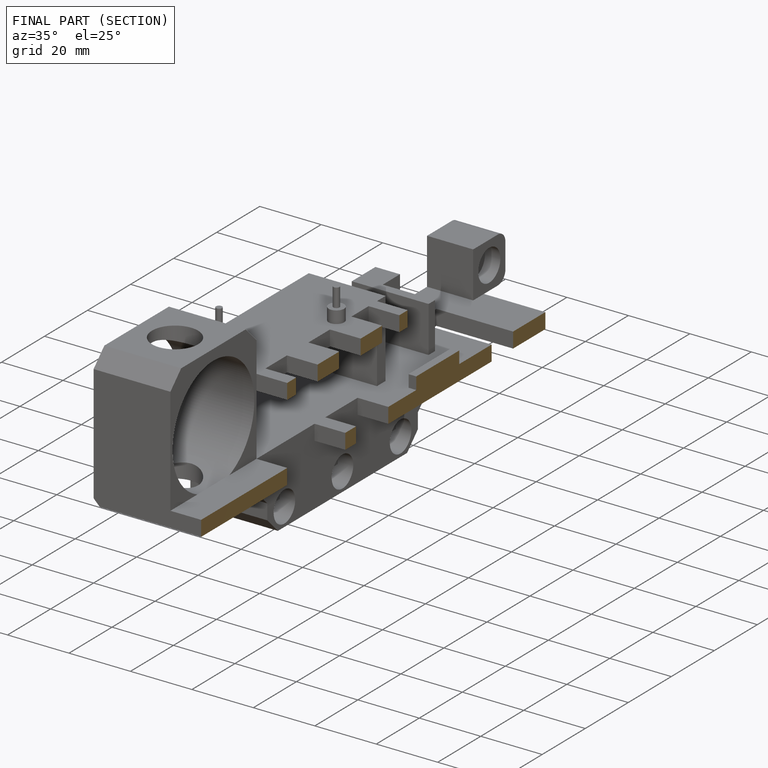
[diagram: finished part — half-section view (interior)]
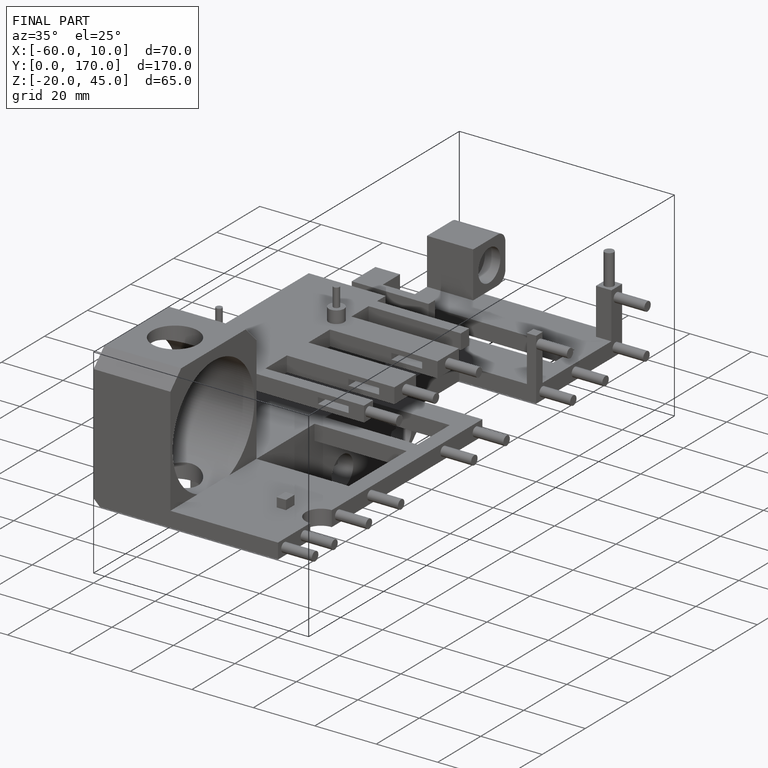
[diagram: finished part — iso view with bounding-box wireframe]
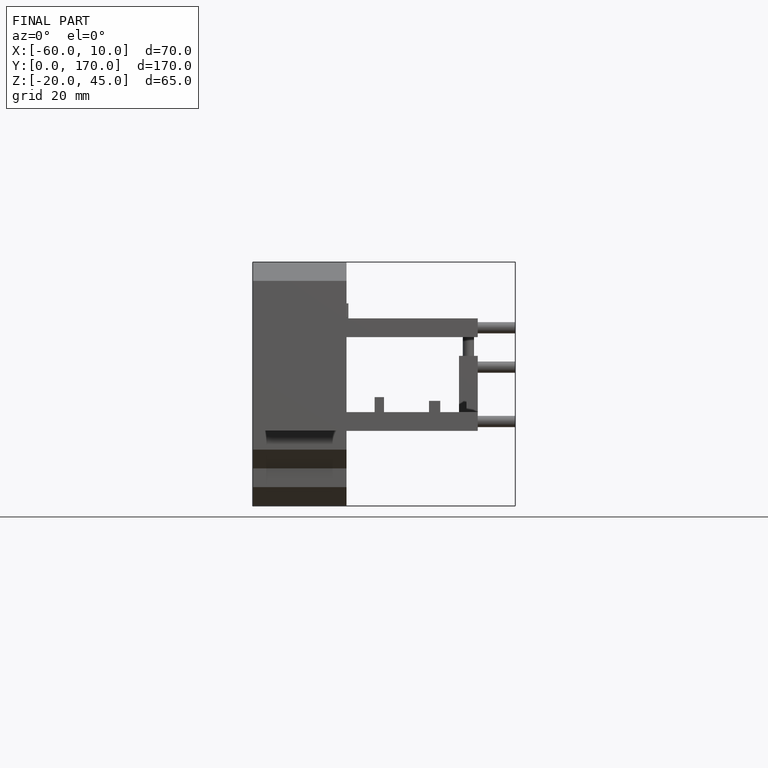
[diagram: finished part — front view with bounding-box wireframe]
